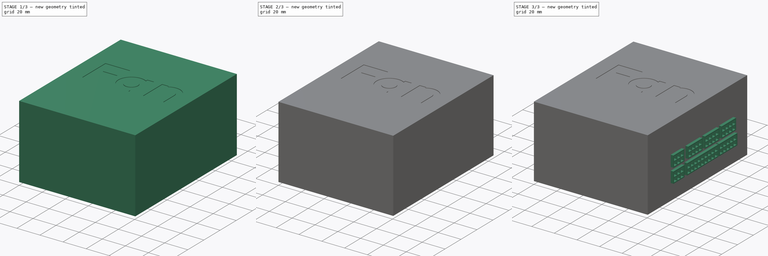
[diagram: build sequence overview — one tinted view per stage of 3, left to right]
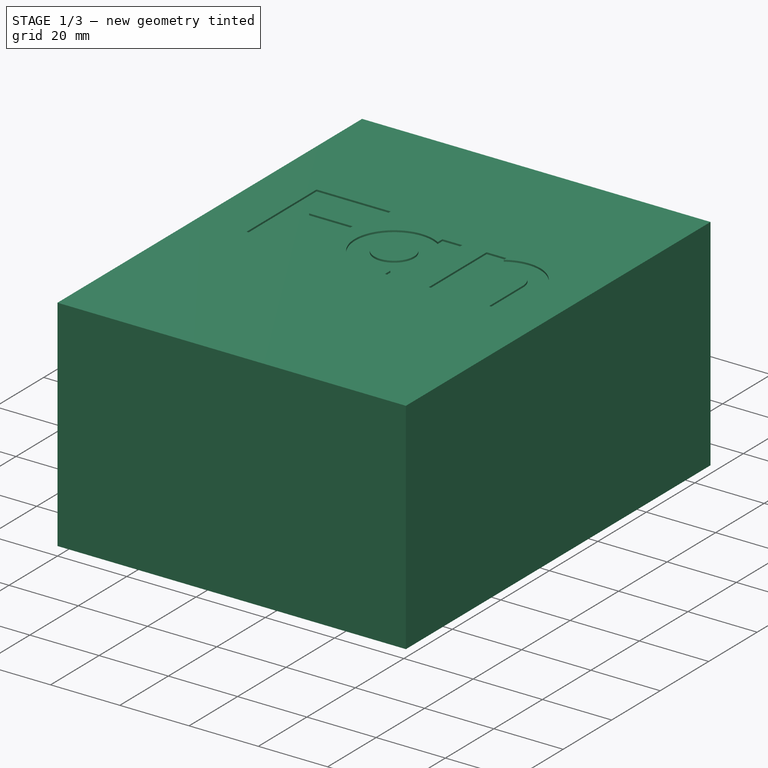
[diagram: stage 1 of 3 — iso view after this stage's code; geometry added in this stage tinted green]
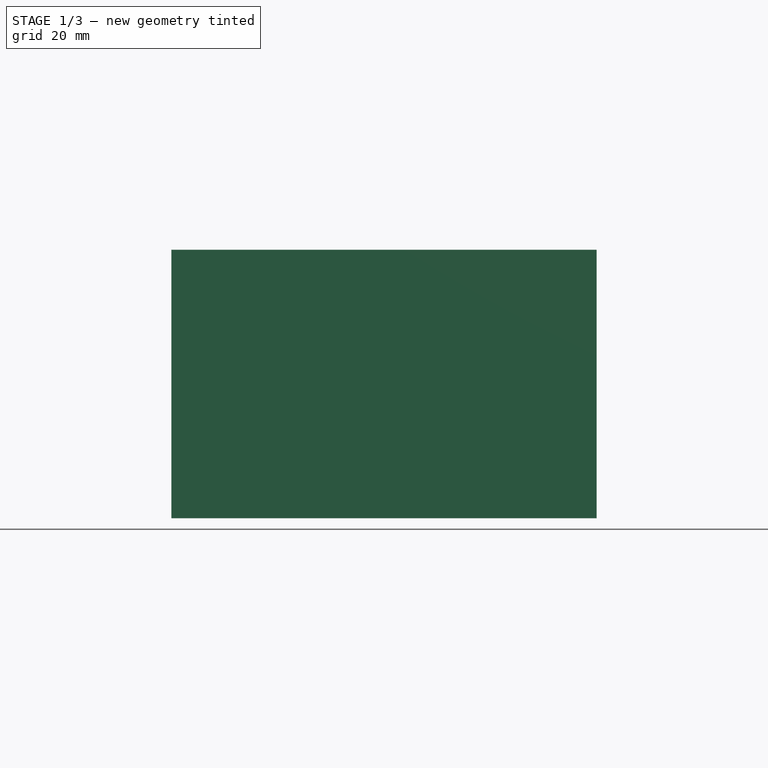
[diagram: stage 1 of 3 — front view after this stage's code; geometry added in this stage tinted green]
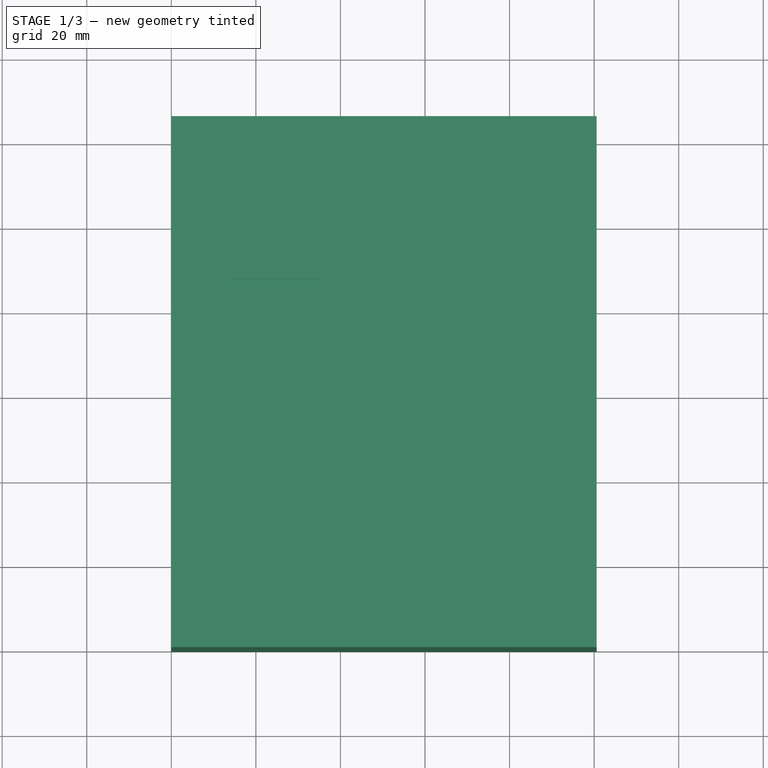
[diagram: stage 1 of 3 — top view after this stage's code; geometry added in this stage tinted green]
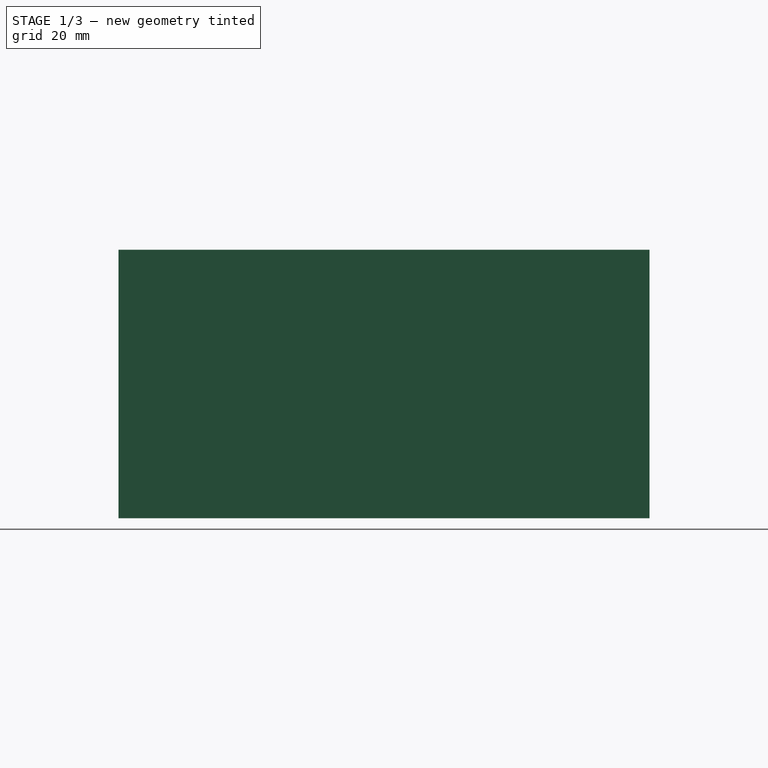
[diagram: stage 1 of 3 — right view after this stage's code; geometry added in this stage tinted green]
FCSTD DOCUMENT  (FreeCAD 0.21R33771 (Git))
Label: thermaltake-sfx-650w
License: All rights reserved
LicenseURL: http://en.wikipedia.org/wiki/All_rights_reserved
objects: Sketcher::SketchObject×6, PartDesign::Pad×3, PartDesign::Pocket×2, PartDesign::Hole×1, PartDesign::Body×1
note: 19 computed .brp shape members not serialized (recipe doc carries the construction recipe); baked Part::Feature solids carry a one-line shape summary decoded from their .brp

FEATURE [Sketcher::SketchObject] Sketch
  FullyConstrained = true
  MapMode = 5
  Support = -> [XY_Plane]
  sketch-geometry (4):
    g0: LineSegment StartX=0 StartY=0 StartZ=0 EndX=100.6 EndY=0 EndZ=0
    g1: LineSegment StartX=100.6 StartY=0 StartZ=0 EndX=100.6 EndY=125.6 EndZ=0
    g2: LineSegment StartX=100.6 StartY=125.6 StartZ=0 EndX=0 EndY=125.6 EndZ=0
    g3: LineSegment StartX=0 StartY=125.6 StartZ=0 EndX=0 EndY=0 EndZ=0
  constraints (11):
    c: Coincident(g0,g1)
    c: Coincident(g1,g2)
    c: Coincident(g2,g3)
    c: Coincident(g3,g0)
    c: Horizontal(g0)
    c: Horizontal(g2)
    c: Vertical(g1)
    c: Vertical(g3)
    c: Coincident(g0,g-1)
    c: DistanceX(g2,g2) = 100.6
    c: DistanceY(g1,g1) = 125.6
FEATURE [PartDesign::Pad] Pad
  Direction = (0,0,1)
  Length = 63.5
  Length2 = 10
  Profile = -> Sketch
  ReferenceAxis = -> Sketch [N_Axis]
  Type = 0
FEATURE [Sketcher::SketchObject] Sketch001
  FullyConstrained = false
  MapMode = 5
  Placement = pos=(0,0,63.5) rot=(0,0,1;0rad)
  Support = -> [Pad]
  sketch-geometry (30):
    g0: LineSegment StartX=13.8467 StartY=87.0433 StartZ=0 EndX=13.8467 EndY=58.18 EndZ=0
    g1: LineSegment StartX=13.8467 StartY=58.18 StartZ=0 EndX=19.964 EndY=58.18 EndZ=0
    g2: LineSegment StartX=19.964 StartY=58.18 StartZ=0 EndX=19.964 EndY=70.7491 EndZ=0
    g3: LineSegment StartX=19.964 StartY=70.7491 StartZ=0 EndX=32.624 EndY=70.7491 EndZ=0
    g4: LineSegment StartX=32.624 StartY=70.7491 StartZ=0 EndX=32.624 EndY=75.0752 EndZ=0
    g5: LineSegment StartX=32.624 StartY=75.0752 StartZ=0 EndX=20.0682 EndY=75.0752 EndZ=0
    g6: LineSegment StartX=20.0682 StartY=75.0752 StartZ=0 EndX=20.0682 EndY=81.8909 EndZ=0
    g7: LineSegment StartX=20.0682 StartY=81.8909 StartZ=0 EndX=35.2748 EndY=81.8909 EndZ=0
    g8: LineSegment StartX=35.2748 StartY=81.8909 StartZ=0 EndX=35.2748 EndY=87.0433 EndZ=0
    g9: LineSegment StartX=35.2748 StartY=87.0433 StartZ=0 EndX=13.8467 EndY=87.0433 EndZ=0
    g10: Circle CenterX=48.4536 CenterY=69.6076 CenterZ=0 NormalX=0 NormalY=0 NormalZ=1 AngleXU=0 Radius=5.7515
    g11: LineSegment StartX=54.2051 StartY=81.3207 StartZ=0 EndX=54.2051 EndY=57.6145 EndZ=0
    g12: LineSegment StartX=54.2051 StartY=81.3207 StartZ=0 EndX=59.9433 EndY=81.3207 EndZ=0
    g13: LineSegment StartX=59.9433 StartY=81.3207 StartZ=0 EndX=59.9433 EndY=57.6145 EndZ=0
    g14: LineSegment StartX=59.9433 StartY=57.6145 StartZ=0 EndX=54.2051 EndY=57.6145 EndZ=0
    g15: ArcOfCircle CenterX=48.4536 CenterY=69.6076 CenterZ=0 NormalX=0 NormalY=0 NormalZ=1 AngleXU=0 Radius=11.327 StartAngle=1.03821 EndAngle=5.24498
    g16: LineSegment StartX=54.2051 StartY=79.3658 StartZ=0 EndX=54.2051 EndY=81.3207 EndZ=0
    g17: LineSegment StartX=54.2051 StartY=59.8494 StartZ=0 EndX=54.2051 EndY=57.6145 EndZ=0
    g18: ArcOfCircle CenterX=78.6875 CenterY=70.9461 CenterZ=0 NormalX=0 NormalY=0 NormalZ=1 AngleXU=0 Radius=6.01167 StartAngle=-9e-16 EndAngle=3.14159
    g19: ArcOfCircle CenterX=78.6875 CenterY=70.9461 CenterZ=0 NormalX=0 NormalY=0 NormalZ=1 AngleXU=0 Radius=11.0434 StartAngle=0 EndAngle=2.14643
    g20: LineSegment StartX=72.6758 StartY=80.2098 StartZ=0 EndX=72.6758 EndY=70.9461 EndZ=0
    g21: LineSegment StartX=84.6992 StartY=70.9461 StartZ=0 EndX=89.7309 EndY=70.9461 EndZ=0
    g22: LineSegment StartX=84.6992 StartY=70.9461 StartZ=0 EndX=84.6992 EndY=57.0677 EndZ=0
    g23: LineSegment StartX=84.6992 StartY=57.0677 StartZ=0 EndX=89.7309 EndY=57.0677 EndZ=0
    g24: LineSegment StartX=89.7309 StartY=57.0677 StartZ=0 EndX=89.7309 EndY=70.9461 EndZ=0
    g25: LineSegment StartX=66.9433 StartY=81.3514 StartZ=0 EndX=72.6758 EndY=81.3514 EndZ=0
    g26: LineSegment StartX=72.6758 StartY=57.5172 StartZ=0 EndX=66.9433 EndY=57.5172 EndZ=0
    g27: LineSegment StartX=66.9433 StartY=57.5172 StartZ=0 EndX=66.9433 EndY=81.3514 EndZ=0
    g28: LineSegment StartX=72.6758 StartY=81.3514 StartZ=0 EndX=72.6758 EndY=80.2098 EndZ=0
    g29: LineSegment StartX=72.6758 StartY=70.9461 StartZ=0 EndX=72.6758 EndY=57.5172 EndZ=0
  constraints (62):
    c: Vertical(g0)
    c: Coincident(g0,g1)
    c: Horizontal(g1)
    c: Coincident(g1,g2)
    c: Vertical(g2)
    c: Coincident(g2,g3)
    c: Coincident(g3,g4)
    c: Coincident(g4,g5)
    c: Horizontal(g5)
    c: Coincident(g5,g6)
    c: Coincident(g6,g7)
    c: Coincident(g7,g8)
    c: Coincident(g8,g9)
    c: Horizontal(g9)
    c: Coincident(g9,g0)
    c: Horizontal(g7)
    c: Horizontal(g3)
    c: Vertical(g6)
    c: Vertical(g8)
    c: Vertical(g4)
    c: Vertical(g11)
    c: Tangent(g11,g10)
    c: Coincident(g12,g11)
    c: Coincident(g12,g13)
    c: Vertical(g13)
    c: Coincident(g13,g14)
    c: Coincident(g14,g11)
    c: Horizontal(g12)
    c: Horizontal(g14)
    c: Coincident(g15,g10)
    c: PointOnObject(g15,g11)
    c: PointOnObject(g15,g11)
    c: Coincident(g16,g15)
    c: Coincident(g17,g15)
    c: Coincident(g14,g17)
    c: Coincident(g16,g12)
    c: Coincident(g19,g18)
    c: Coincident(g20,g19)
    c: Coincident(g20,g18)
    c: Tangent(g20,g18)
    c: Coincident(g21,g18)
    c: Coincident(g21,g19)
    c: Horizontal(g21)
    c: Vertical(g20)
    c: Vertical(g22)
    c: Coincident(g22,g23)
    c: Horizontal(g23)
    c: Coincident(g23,g24)
    c: Coincident(g24,g19)
    c: Tangent(g22,g18) = 1.5708
    c: Vertical(g24)
    c: Coincident(g26,g27)
    c: Coincident(g27,g25)
    c: Horizontal(g25)
    c: Horizontal(g26)
    c: Vertical(g27)
    c: Coincident(g28,g25)
    c: Coincident(g28,g19)
    c: Vertical(g28)
    c: Coincident(g29,g18)
    c: Coincident(g29,g26)
    c: Vertical(g29)
FEATURE [PartDesign::Pocket] Pocket
  BaseFeature = -> Pad
  Direction = (0,0,-1)
  Length = 0.5
  Length2 = 5
  Profile = -> Sketch001
  ReferenceAxis = -> Sketch001 [N_Axis]
  Type = 0
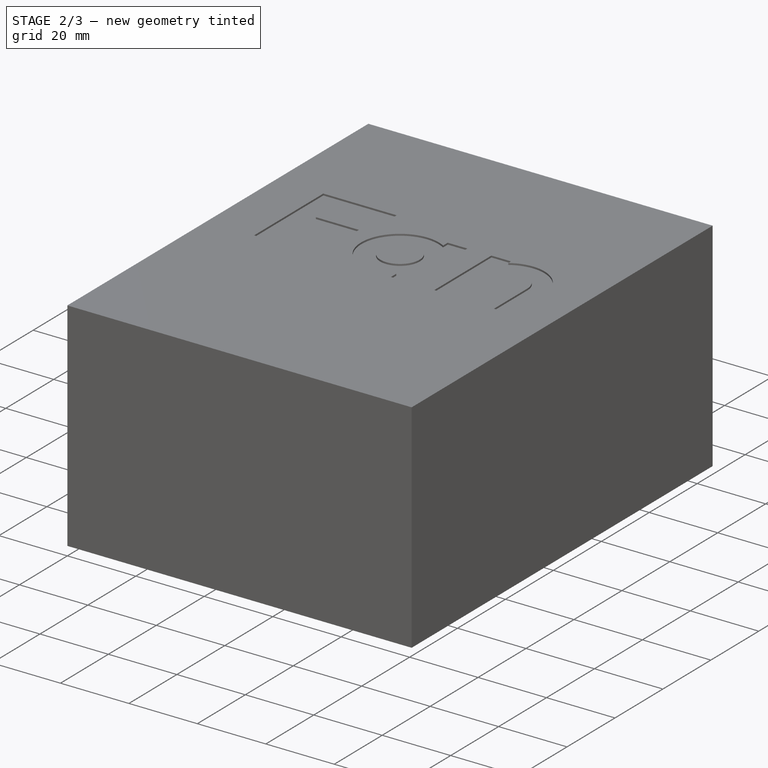
[diagram: stage 2 of 3 — iso view after this stage's code; geometry added in this stage tinted green]
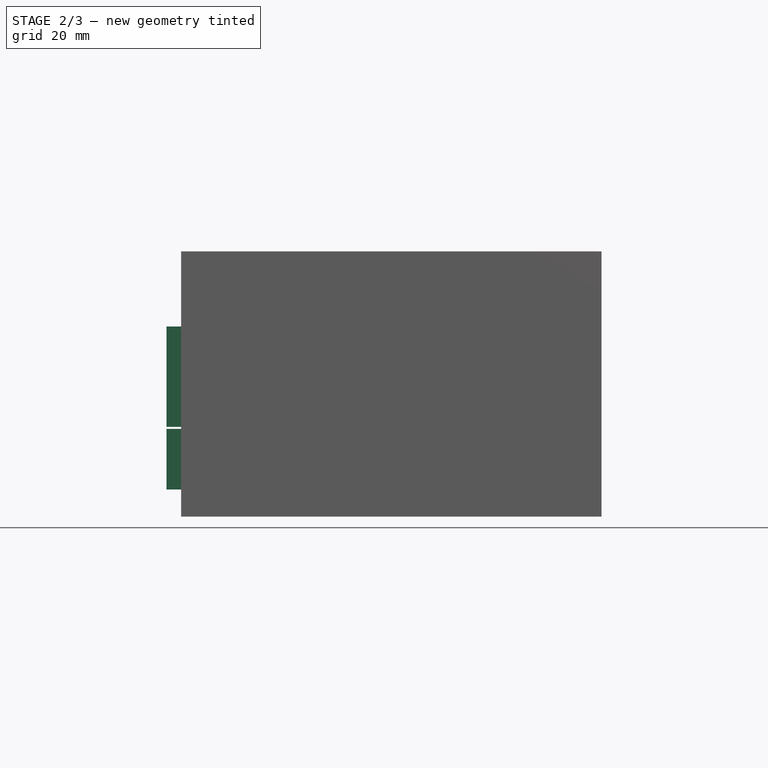
[diagram: stage 2 of 3 — front view after this stage's code; geometry added in this stage tinted green]
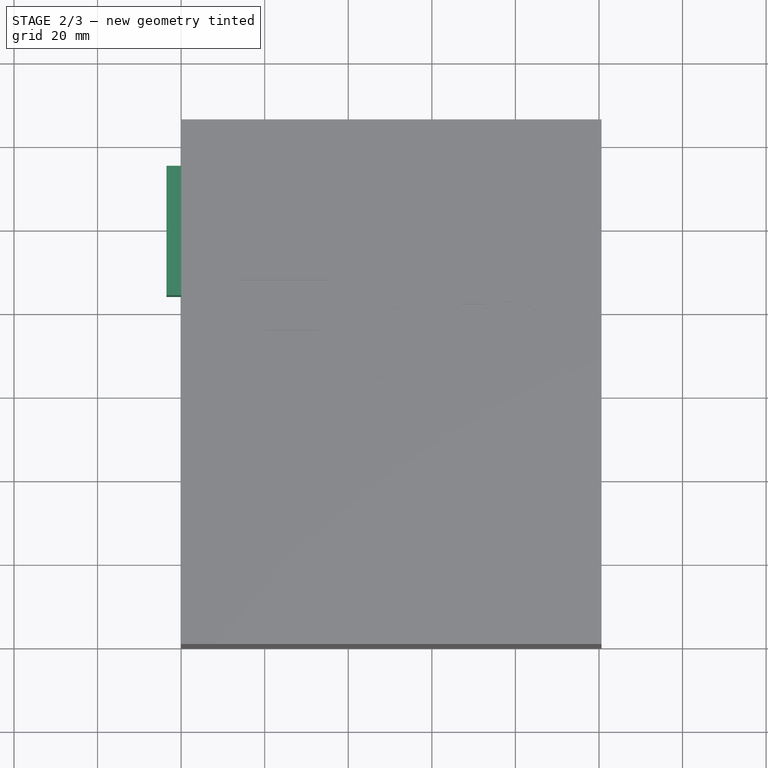
[diagram: stage 2 of 3 — top view after this stage's code; geometry added in this stage tinted green]
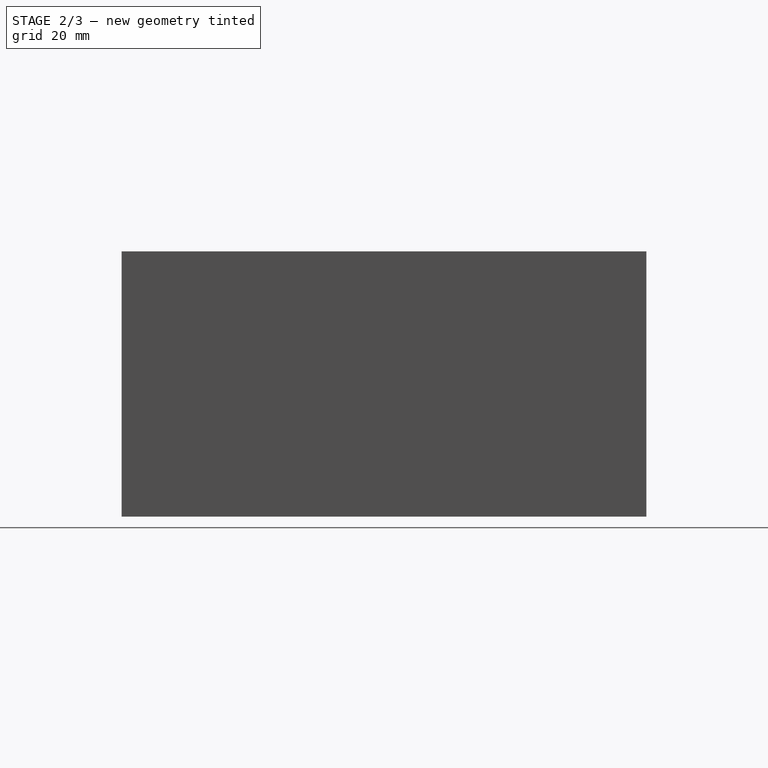
[diagram: stage 2 of 3 — right view after this stage's code; geometry added in this stage tinted green]
FEATURE [Sketcher::SketchObject] Sketch002
  ExternalGeometry = -> [Pocket]
  FullyConstrained = true
  MapMode = 5
  Placement = pos=(0,0,0) rot=(0.57735,-0.57735,-0.57735;2.0944rad)
  Support = -> [Pocket]
  sketch-geometry (8):
    g0: LineSegment StartX=-114.8 StartY=45.5 StartZ=0 EndX=-83.8 EndY=45.5 EndZ=0
    g1: LineSegment StartX=-83.8 StartY=45.5 StartZ=0 EndX=-83.8 EndY=21.5 EndZ=0
    g2: LineSegment StartX=-83.8 StartY=21.5 StartZ=0 EndX=-114.8 EndY=21.5 EndZ=0
    g3: LineSegment StartX=-114.8 StartY=21.5 StartZ=0 EndX=-114.8 EndY=45.5 EndZ=0
    g4: LineSegment StartX=-113.3 StartY=21 StartZ=0 EndX=-92.3 EndY=21 EndZ=0
    g5: LineSegment StartX=-92.3 StartY=21 StartZ=0 EndX=-92.3 EndY=6.5 EndZ=0
    g6: LineSegment StartX=-92.3 StartY=6.5 StartZ=0 EndX=-113.3 EndY=6.5 EndZ=0
    g7: LineSegment StartX=-113.3 StartY=6.5 StartZ=0 EndX=-113.3 EndY=21 EndZ=0
  constraints (24):
    c: Coincident(g0,g1)
    c: Coincident(g1,g2)
    c: Coincident(g2,g3)
    c: Coincident(g3,g0)
    c: Horizontal(g0)
    c: Horizontal(g2)
    c: Vertical(g1)
    c: Vertical(g3)
    c: DistanceX(g0,g0) = 31
    c: DistanceY(g1,g1) = 24
    c: DistanceX(g-4,g0) = 10.8
    c: DistanceY(g0,g-4) = 18
    c: Coincident(g4,g5)
    c: Coincident(g5,g6)
    c: Coincident(g6,g7)
    c: Coincident(g7,g4)
    c: Horizontal(g4)
    c: Horizontal(g6)
    c: Vertical(g5)
    c: Vertical(g7)
    c: DistanceY(g4,g2) = 0.5
    c: DistanceY(g6,g2) = 15
    c: DistanceX(g2,g6) = 1.5
    c: DistanceX(g6,g6) = 21
FEATURE [PartDesign::Pad] Pad001
  BaseFeature = -> Pocket
  Direction = (-1,0,0)
  Length = 3.5
  Length2 = 10
  Profile = -> Sketch002
  ReferenceAxis = -> Sketch002 [N_Axis]
  Type = 0
FEATURE [Sketcher::SketchObject] Sketch003
  ExternalGeometry = -> [Pad001]
  FullyConstrained = false
  MapMode = 5
  Placement = pos=(0,0,0) rot=(0.57735,-0.57735,-0.57735;2.0944rad)
  Support = -> [Pad001]
  sketch-geometry (16):
    g0: LineSegment StartX=-120.3 StartY=57.5 StartZ=0 EndX=-5.3 EndY=57.5 EndZ=0
    g1: LineSegment StartX=-5.3 StartY=57.5 StartZ=0 EndX=-5.3 EndY=31.75 EndZ=0
    g2: LineSegment StartX=-5.3 StartY=31.75 StartZ=0 EndX=-120.3 EndY=31.75 EndZ=0
    g3: LineSegment StartX=-120.3 StartY=31.75 StartZ=0 EndX=-120.3 EndY=57.5 EndZ=0
    g4: LineSegment StartX=-120.3 StartY=31.75 StartZ=0 EndX=-120.3 EndY=6 EndZ=0
    g5: LineSegment StartX=-120.3 StartY=6 StartZ=0 EndX=-5.3 EndY=6 EndZ=0
    g6: LineSegment StartX=-5.3 StartY=6 StartZ=0 EndX=-5.3 EndY=31.75 EndZ=0
    g7: Circle CenterX=-120.3 CenterY=57.5 CenterZ=0 NormalX=0 NormalY=0 NormalZ=1 AngleXU=0 Radius=3.34431
    g8: Circle CenterX=-120.3 CenterY=31.75 CenterZ=0 NormalX=0 NormalY=0 NormalZ=1 AngleXU=0 Radius=3.34431
    g9: Circle CenterX=-120.3 CenterY=6 CenterZ=0 NormalX=0 NormalY=0 NormalZ=1 AngleXU=0 Radius=3.34431
    g10: Circle CenterX=-5.3 CenterY=6 CenterZ=0 NormalX=0 NormalY=0 NormalZ=1 AngleXU=0 Radius=3.34431
    g11: Circle CenterX=-5.3 CenterY=31.75 CenterZ=0 NormalX=0 NormalY=0 NormalZ=1 AngleXU=0 Radius=3.34431
    g12: Circle CenterX=-5.3 CenterY=57.5 CenterZ=0 NormalX=0 NormalY=0 NormalZ=1 AngleXU=0 Radius=3.34431
    g13: LineSegment StartX=-125.6 StartY=63.5 StartZ=0 EndX=-120.3 EndY=57.5 EndZ=0
    g14: LineSegment StartX=0 StartY=63.5 StartZ=0 EndX=-5.3 EndY=57.5 EndZ=0
    g15: LineSegment StartX=-120.3 StartY=6 StartZ=0 EndX=-125.6 EndY=0 EndZ=0
  constraints (39):
    c: Coincident(g0,g1)
    c: Coincident(g1,g2)
    c: Coincident(g2,g3)
    c: Coincident(g3,g0)
    c: Horizontal(g0)
    c: Horizontal(g2)
    c: Vertical(g1)
    c: Vertical(g3)
    c: Coincident(g5,g6)
    c: Coincident(g4,g5)
    c: Horizontal(g5)
    c: Vertical(g6)
    c: Vertical(g4)
    c: Equal(g1,g6)
    c: Coincident(g7,g0)
    c: Coincident(g8,g2)
    c: Coincident(g9,g4)
    c: Coincident(g10,g5)
    c: Coincident(g11,g1)
    c: Coincident(g12,g0)
    c: Coincident(g13,g-5)
    c: Coincident(g13,g7)
    c: Coincident(g14,g-4)
    c: Coincident(g14,g12)
    c: Coincident(g15,g9)
    c: Coincident(g15,g-5)
    c: Equal(g15,g13)
    c: Equal(g13,g14)
    c: Coincident(g4,g8)
    c: Coincident(g6,g11)
    c: Equal(g9,g8)
    c: Equal(g8,g7)
    c: Equal(g7,g12)
    c: Equal(g12,g11)
    c: Equal(g11,g10)
    c: DistanceX(g0,g0) = 115
    c: DistanceY(g10,g12) = 51.5
    c: DistanceY(g7,g13) = 6
    c: DistanceX(g12,g14) = 5.3
FEATURE [PartDesign::Hole] Hole
  BaseFeature = -> Pad001
  CustomThreadClearance = 0
  Depth = 10
  DepthType = 0
  Diameter = 2.52
  DrillForDepth = false
  DrillPoint = 0
  DrillPointAngle = 118
  HoleCutCountersinkAngle = 90
  HoleCutCustomValues = false
  HoleCutDepth = 0
  HoleCutDiameter = 6.1
  HoleCutType = 0
  ModelThread = true
  Profile = -> Sketch003
  Tapered = false
  TaperedAngle = 90
  ThreadClass = 0
  ThreadDepth = 10
  ThreadDepthType = 0
  ThreadDirection = 0
  ThreadFit = 0
  ThreadSize = 9
  ThreadType = 1
  Threaded = true
  UseCustomThreadClearance = false
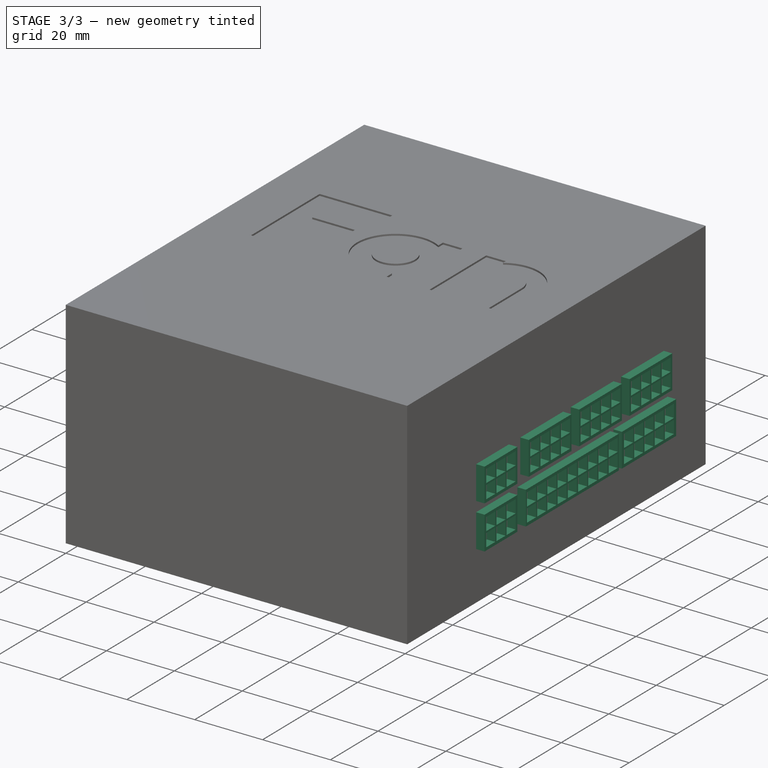
[diagram: stage 3 of 3 — iso view after this stage's code; geometry added in this stage tinted green]
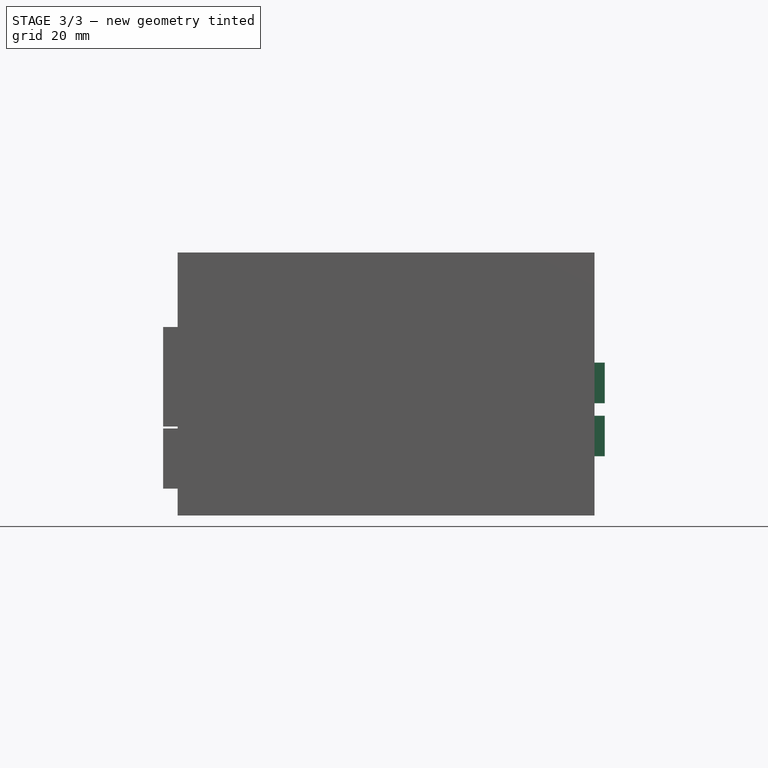
[diagram: stage 3 of 3 — front view after this stage's code; geometry added in this stage tinted green]
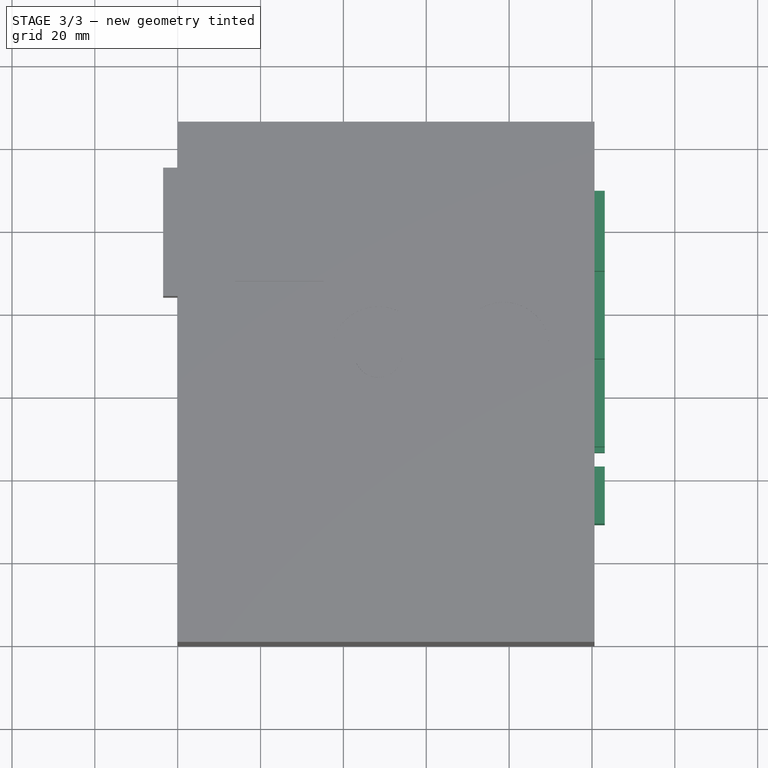
[diagram: stage 3 of 3 — top view after this stage's code; geometry added in this stage tinted green]
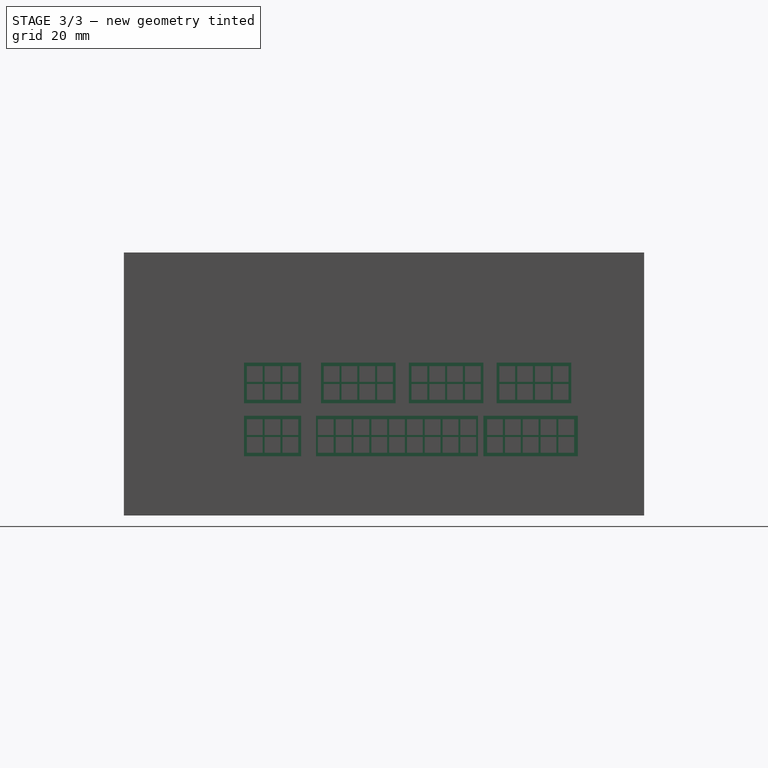
[diagram: stage 3 of 3 — right view after this stage's code; geometry added in this stage tinted green]
FEATURE [Sketcher::SketchObject] Sketch004
  FullyConstrained = false
  MapMode = 5
  Placement = pos=(0,0,0) rot=(0.57735,-0.57735,-0.57735;2.0944rad)
  Support = -> [Hole]
  sketch-geometry (21):
    g0: LineSegment StartX=-43.3891 StartY=33.4609 StartZ=0 EndX=-40.5171 EndY=44.1793 EndZ=0
    g1: LineSegment StartX=-40.5171 StartY=44.1793 StartZ=0 EndX=-48.3635 EndY=52.0257 EndZ=0
    g2: LineSegment StartX=-48.3635 StartY=52.0257 StartZ=0 EndX=-59.082 EndY=49.1537 EndZ=0
    g3: LineSegment StartX=-59.082 StartY=49.1537 StartZ=0 EndX=-61.954 EndY=38.4353 EndZ=0
    g4: LineSegment StartX=-61.954 StartY=38.4353 StartZ=0 EndX=-54.1075 EndY=30.5889 EndZ=0
    g5: LineSegment StartX=-54.1075 StartY=30.5889 StartZ=0 EndX=-43.3891 EndY=33.4609 EndZ=0
    g6: Circle CenterX=-51.2355 CenterY=41.3073 CenterZ=0 NormalX=0 NormalY=0 NormalZ=1 AngleXU=0 Radius=11.0965
    g7: LineSegment StartX=-30.3674 StartY=13.9283 StartZ=0 EndX=-26.9782 EndY=24.7526 EndZ=0
    g8: LineSegment StartX=-26.9782 StartY=24.7526 StartZ=0 EndX=-34.6577 EndY=33.0998 EndZ=0
    g9: LineSegment StartX=-34.6577 StartY=33.0998 StartZ=0 EndX=-45.7263 EndY=30.6228 EndZ=0
    g10: LineSegment StartX=-45.7263 StartY=30.6228 StartZ=0 EndX=-49.1155 EndY=19.7986 EndZ=0
    g11: LineSegment StartX=-49.1155 StartY=19.7986 StartZ=0 EndX=-41.4361 EndY=11.4513 EndZ=0
    g12: LineSegment StartX=-41.4361 StartY=11.4513 StartZ=0 EndX=-30.3674 EndY=13.9283 EndZ=0
    g13: Circle CenterX=-38.0469 CenterY=22.2756 CenterZ=0 NormalX=0 NormalY=0 NormalZ=1 AngleXU=0 Radius=11.3425
    g14: LineSegment StartX=-54.0736 StartY=12.4258 StartZ=0 EndX=-50.5786 EndY=22.7328 EndZ=0
    g15: LineSegment StartX=-50.5786 StartY=22.7328 StartZ=0 EndX=-57.7572 EndY=30.9131 EndZ=0
    g16: LineSegment StartX=-57.7572 StartY=30.9131 StartZ=0 EndX=-68.4309 EndY=28.7864 EndZ=0
    g17: LineSegment StartX=-68.4309 StartY=28.7864 StartZ=0 EndX=-71.9259 EndY=18.4794 EndZ=0
    g18: LineSegment StartX=-71.9259 StartY=18.4794 StartZ=0 EndX=-64.7473 EndY=10.2991 EndZ=0
    g19: LineSegment StartX=-64.7473 StartY=10.2991 StartZ=0 EndX=-54.0736 EndY=12.4258 EndZ=0
    g20: Circle CenterX=-61.2522 CenterY=20.6061 CenterZ=0 NormalX=0 NormalY=0 NormalZ=1 AngleXU=0 Radius=10.8835
  constraints (39):
    c: Coincident(g0,g1)
    c: Coincident(g1,g2)
    c: Coincident(g2,g3)
    c: Coincident(g3,g4)
    c: Coincident(g4,g5)
    c: Coincident(g5,g0)
    c: Equal(g0, g1-g5) x5
    c: PointOnObject(g0,g6)
    c: PointOnObject(g1,g6)
    c: PointOnObject(g2,g6)
    c: PointOnObject(g3,g6)
    c: PointOnObject(g4,g6)
    c: PointOnObject(g5,g6)
    c: Coincident(g7,g8)
    c: Coincident(g8,g9)
    c: Coincident(g9,g10)
    c: Coincident(g10,g11)
    c: Coincident(g11,g12)
    c: Coincident(g12,g7)
    c: Equal(g7, g8-g12) x5
    c: PointOnObject(g7,g13)
    c: PointOnObject(g8,g13)
    c: PointOnObject(g9,g13)
    c: PointOnObject(g10,g13)
    c: PointOnObject(g11,g13)
    c: PointOnObject(g12,g13)
    c: Coincident(g14,g15)
    c: Coincident(g15,g16)
    c: Coincident(g16,g17)
    c: Coincident(g17,g18)
    c: Coincident(g18,g19)
    c: Coincident(g19,g14)
    c: Equal(g14, g15-g19) x5
    c: PointOnObject(g14,g20)
    c: PointOnObject(g15,g20)
    c: PointOnObject(g16,g20)
    c: PointOnObject(g17,g20)
    c: PointOnObject(g18,g20)
    c: PointOnObject(g19,g20)
FEATURE [PartDesign::Pocket] Pocket001
  BaseFeature = -> Hole
  Direction = (1,0,0)
  Length = 0.5
  Length2 = 5
  Profile = -> Sketch004
  ReferenceAxis = -> Sketch004 [N_Axis]
  Type = 0
FEATURE [Sketcher::SketchObject] Sketch005
  ExternalGeometry = -> [Pocket001]
  FullyConstrained = true
  MapMode = 5
  Placement = pos=(100.6,0,0) rot=(0.57735,0.57735,0.57735;2.0944rad)
  Support = -> [Pocket001]
  sketch-geometry (339):
    g0: LineSegment StartX=90 StartY=36.9 StartZ=0 EndX=108 EndY=36.9 EndZ=0
    g1: LineSegment StartX=108 StartY=36.9 StartZ=0 EndX=108 EndY=27.1 EndZ=0
    g2: LineSegment StartX=108 StartY=27.1 StartZ=0 EndX=90 EndY=27.1 EndZ=0
    g3: LineSegment StartX=90 StartY=27.1 StartZ=0 EndX=90 EndY=36.9 EndZ=0
    g4: LineSegment StartX=68.8 StartY=36.9 StartZ=0 EndX=86.8 EndY=36.9 EndZ=0
    g5: LineSegment StartX=86.8 StartY=36.9 StartZ=0 EndX=86.8 EndY=27.1 EndZ=0
    g6: LineSegment StartX=86.8 StartY=27.1 StartZ=0 EndX=68.8 EndY=27.1 EndZ=0
    g7: LineSegment StartX=68.8 StartY=27.1 StartZ=0 EndX=68.8 EndY=36.9 EndZ=0
    g8: LineSegment StartX=47.6 StartY=36.9 StartZ=0 EndX=65.6 EndY=36.9 EndZ=0
    g9: LineSegment StartX=65.6 StartY=36.9 StartZ=0 EndX=65.6 EndY=27.1 EndZ=0
    g10: LineSegment StartX=65.6 StartY=27.1 StartZ=0 EndX=47.6 EndY=27.1 EndZ=0
    g11: LineSegment StartX=47.6 StartY=27.1 StartZ=0 EndX=47.6 EndY=36.9 EndZ=0
    g12: LineSegment StartX=90.65 StartY=36.05 StartZ=0 EndX=94.45 EndY=36.05 EndZ=0
    g13: LineSegment StartX=94.45 StartY=36.05 StartZ=0 EndX=94.45 EndY=32.25 EndZ=0
    g14: LineSegment StartX=94.45 StartY=32.25 StartZ=0 EndX=90.65 EndY=32.25 EndZ=0
    g15: LineSegment StartX=90.65 StartY=32.25 StartZ=0 EndX=90.65 EndY=36.05 EndZ=0
    g16: LineSegment StartX=94.95 StartY=36.05 StartZ=0 EndX=98.75 EndY=36.05 EndZ=0
    g17: LineSegment StartX=98.75 StartY=36.05 StartZ=0 EndX=98.75 EndY=32.25 EndZ=0
    g18: LineSegment StartX=98.75 StartY=32.25 StartZ=0 EndX=94.95 EndY=32.25 EndZ=0
    g19: LineSegment StartX=94.95 StartY=32.25 StartZ=0 EndX=94.95 EndY=36.05 EndZ=0
    g20: LineSegment StartX=99.25 StartY=36.05 StartZ=0 EndX=103.05 EndY=36.05 EndZ=0
    g21: LineSegment StartX=103.05 StartY=36.05 StartZ=0 EndX=103.05 EndY=32.25 EndZ=0
    g22: LineSegment StartX=103.05 StartY=32.25 StartZ=0 EndX=99.25 EndY=32.25 EndZ=0
    g23: LineSegment StartX=99.25 StartY=32.25 StartZ=0 EndX=99.25 EndY=36.05 EndZ=0
    g24: LineSegment StartX=103.55 StartY=36.05 StartZ=0 EndX=107.35 EndY=36.05 EndZ=0
    g25: LineSegment StartX=107.35 StartY=36.05 StartZ=0 EndX=107.35 EndY=32.25 EndZ=0
    g26: LineSegment StartX=107.35 StartY=32.25 StartZ=0 EndX=103.55 EndY=32.25 EndZ=0
    g27: LineSegment StartX=103.55 StartY=32.25 StartZ=0 EndX=103.55 EndY=36.05 EndZ=0
    g28: LineSegment StartX=103.55 StartY=31.75 StartZ=0 EndX=107.35 EndY=31.75 EndZ=0
    g29: LineSegment StartX=107.35 StartY=31.75 StartZ=0 EndX=107.35 EndY=27.95 EndZ=0
    g30: LineSegment StartX=107.35 StartY=27.95 StartZ=0 EndX=103.55 EndY=27.95 EndZ=0
    g31: LineSegment StartX=103.55 StartY=27.95 StartZ=0 EndX=103.55 EndY=31.75 EndZ=0
    g32: LineSegment StartX=99.25 StartY=31.75 StartZ=0 EndX=103.05 EndY=31.75 EndZ=0
    g33: LineSegment StartX=103.05 StartY=31.75 StartZ=0 EndX=103.05 EndY=27.95 EndZ=0
    g34: LineSegment StartX=103.05 StartY=27.95 StartZ=0 EndX=99.25 EndY=27.95 EndZ=0
    g35: LineSegment StartX=99.25 StartY=27.95 StartZ=0 EndX=99.25 EndY=31.75 EndZ=0
    g36: LineSegment StartX=94.95 StartY=31.75 StartZ=0 EndX=98.75 EndY=31.75 EndZ=0
    g37: LineSegment StartX=98.75 StartY=31.75 StartZ=0 EndX=98.75 EndY=27.95 EndZ=0
    g38: LineSegment StartX=98.75 StartY=27.95 StartZ=0 EndX=94.95 EndY=27.95 EndZ=0
    g39: LineSegment StartX=94.95 StartY=27.95 StartZ=0 EndX=94.95 EndY=31.75 EndZ=0
    g40: LineSegment StartX=90.65 StartY=31.75 StartZ=0 EndX=94.45 EndY=31.75 EndZ=0
    g41: LineSegment StartX=94.45 StartY=31.75 StartZ=0 EndX=94.45 EndY=27.95 EndZ=0
    g42: LineSegment StartX=94.45 StartY=27.95 StartZ=0 EndX=90.65 EndY=27.95 EndZ=0
    g43: LineSegment StartX=90.65 StartY=27.95 StartZ=0 EndX=90.65 EndY=31.75 EndZ=0
    g44: LineSegment StartX=94.45 StartY=32.25 StartZ=0 EndX=94.95 EndY=32.25 EndZ=0
    g45: LineSegment StartX=98.75 StartY=32.25 StartZ=0 EndX=99.25 EndY=32.25 EndZ=0
    g46: LineSegment StartX=103.05 StartY=32.25 StartZ=0 EndX=103.55 EndY=32.25 EndZ=0
    g47: LineSegment StartX=65.6 StartY=36.9 StartZ=0 EndX=68.8 EndY=36.9 EndZ=0
    g48: LineSegment StartX=86.8 StartY=36.9 StartZ=0 EndX=90 EndY=36.9 EndZ=0
    g49: LineSegment StartX=90 StartY=36.9 StartZ=0 EndX=90.65 EndY=36.05 EndZ=0
    g50: LineSegment StartX=107.35 StartY=36.05 StartZ=0 EndX=108 EndY=36.9 EndZ=0
    g51: LineSegment StartX=90.65 StartY=27.95 StartZ=0 EndX=90 EndY=27.1 EndZ=0
    g52: LineSegment StartX=73.25 StartY=36.05 StartZ=0 EndX=69.45 EndY=36.05 EndZ=0
    g53: LineSegment StartX=69.45 StartY=36.05 StartZ=0 EndX=69.45 EndY=32.25 EndZ=0
    g54: LineSegment StartX=69.45 StartY=32.25 StartZ=0 EndX=73.25 EndY=32.25 EndZ=0
    g55: LineSegment StartX=73.25 StartY=32.25 StartZ=0 EndX=73.25 EndY=36.05 EndZ=0
    g56: LineSegment StartX=77.55 StartY=36.05 StartZ=0 EndX=73.75 EndY=36.05 EndZ=0
    g57: LineSegment StartX=73.75 StartY=36.05 StartZ=0 EndX=73.75 EndY=32.25 EndZ=0
    g58: LineSegment StartX=73.75 StartY=32.25 StartZ=0 EndX=77.55 EndY=32.25 EndZ=0
    g59: LineSegment StartX=77.55 StartY=32.25 StartZ=0 EndX=77.55 EndY=36.05 EndZ=0
    g60: LineSegment StartX=81.85 StartY=36.05 StartZ=0 EndX=78.05 EndY=36.05 EndZ=0
    g61: LineSegment StartX=78.05 StartY=36.05 StartZ=0 EndX=78.05 EndY=32.25 EndZ=0
    g62: LineSegment StartX=78.05 StartY=32.25 StartZ=0 EndX=81.85 EndY=32.25 EndZ=0
    g63: LineSegment StartX=81.85 StartY=32.25 StartZ=0 EndX=81.85 EndY=36.05 EndZ=0
    g64: LineSegment StartX=86.15 StartY=36.05 StartZ=0 EndX=82.35 EndY=36.05 EndZ=0
    g65: LineSegment StartX=82.35 StartY=36.05 StartZ=0 EndX=82.35 EndY=32.25 EndZ=0
    g66: LineSegment StartX=82.35 StartY=32.25 StartZ=0 EndX=86.15 EndY=32.25 EndZ=0
    g67: LineSegment StartX=86.15 StartY=32.25 StartZ=0 EndX=86.15 EndY=36.05 EndZ=0
    g68: LineSegment StartX=86.15 StartY=31.75 StartZ=0 EndX=82.35 EndY=31.75 EndZ=0
    g69: LineSegment StartX=82.35 StartY=31.75 StartZ=0 EndX=82.35 EndY=27.95 EndZ=0
    g70: LineSegment StartX=82.35 StartY=27.95 StartZ=0 EndX=86.15 EndY=27.95 EndZ=0
    g71: LineSegment StartX=86.15 StartY=27.95 StartZ=0 EndX=86.15 EndY=31.75 EndZ=0
    g72: LineSegment StartX=81.85 StartY=31.75 StartZ=0 EndX=78.05 EndY=31.75 EndZ=0
    g73: LineSegment StartX=78.05 StartY=31.75 StartZ=0 EndX=78.05 EndY=27.95 EndZ=0
    g74: LineSegment StartX=78.05 StartY=27.95 StartZ=0 EndX=81.85 EndY=27.95 EndZ=0
    g75: LineSegment StartX=81.85 StartY=27.95 StartZ=0 EndX=81.85 EndY=31.75 EndZ=0
    g76: LineSegment StartX=77.55 StartY=31.75 StartZ=0 EndX=73.75 EndY=31.75 EndZ=0
    g77: LineSegment StartX=73.75 StartY=31.75 StartZ=0 EndX=73.75 EndY=27.95 EndZ=0
    g78: LineSegment StartX=73.75 StartY=27.95 StartZ=0 EndX=77.55 EndY=27.95 EndZ=0
    g79: LineSegment StartX=77.55 StartY=27.95 StartZ=0 EndX=77.55 EndY=31.75 EndZ=0
    g80: LineSegment StartX=73.25 StartY=31.75 StartZ=0 EndX=69.45 EndY=31.75 EndZ=0
    g81: LineSegment StartX=69.45 StartY=31.75 StartZ=0 EndX=69.45 EndY=27.95 EndZ=0
    g82: LineSegment StartX=69.45 StartY=27.95 StartZ=0 EndX=73.25 EndY=27.95 EndZ=0
    g83: LineSegment StartX=73.25 StartY=27.95 StartZ=0 EndX=73.25 EndY=31.75 EndZ=0
    g84: LineSegment StartX=48.25 StartY=36.05 StartZ=0 EndX=52.05 EndY=36.05 EndZ=0
    g85: LineSegment StartX=52.05 StartY=36.05 StartZ=0 EndX=52.05 EndY=32.25 EndZ=0
    g86: LineSegment StartX=52.05 StartY=32.25 StartZ=0 EndX=48.25 EndY=32.25 EndZ=0
    g87: LineSegment StartX=48.25 StartY=32.25 StartZ=0 EndX=48.25 EndY=36.05 EndZ=0
    g88: LineSegment StartX=52.55 StartY=36.05 StartZ=0 EndX=56.35 EndY=36.05 EndZ=0
    g89: LineSegment StartX=56.35 StartY=36.05 StartZ=0 EndX=56.35 EndY=32.25 EndZ=0
    g90: LineSegment StartX=56.35 StartY=32.25 StartZ=0 EndX=52.55 EndY=32.25 EndZ=0
    g91: LineSegment StartX=52.55 StartY=32.25 StartZ=0 EndX=52.55 EndY=36.05 EndZ=0
    g92: LineSegment StartX=56.85 StartY=36.05 StartZ=0 EndX=60.65 EndY=36.05 EndZ=0
    g93: LineSegment StartX=60.65 StartY=36.05 StartZ=0 EndX=60.65 EndY=32.25 EndZ=0
    g94: LineSegment StartX=60.65 StartY=32.25 StartZ=0 EndX=56.85 EndY=32.25 EndZ=0
    g95: LineSegment StartX=56.85 StartY=32.25 StartZ=0 EndX=56.85 EndY=36.05 EndZ=0
    g96: LineSegment StartX=61.15 StartY=36.05 StartZ=0 EndX=64.95 EndY=36.05 EndZ=0
    g97: LineSegment StartX=64.95 StartY=36.05 StartZ=0 EndX=64.95 EndY=32.25 EndZ=0
    g98: LineSegment StartX=64.95 StartY=32.25 StartZ=0 EndX=61.15 EndY=32.25 EndZ=0
    g99: LineSegment StartX=61.15 StartY=32.25 StartZ=0 EndX=61.15 EndY=36.05 EndZ=0
    g100: LineSegment StartX=61.15 StartY=31.75 StartZ=0 EndX=64.95 EndY=31.75 EndZ=0
    g101: LineSegment StartX=64.95 StartY=31.75 StartZ=0 EndX=64.95 EndY=27.95 EndZ=0
    g102: LineSegment StartX=64.95 StartY=27.95 StartZ=0 EndX=61.15 EndY=27.95 EndZ=0
    g103: LineSegment StartX=61.15 StartY=27.95 StartZ=0 EndX=61.15 EndY=31.75 EndZ=0
    g104: LineSegment StartX=56.85 StartY=31.75 StartZ=0 EndX=60.65 EndY=31.75 EndZ=0
    g105: LineSegment StartX=60.65 StartY=31.75 StartZ=0 EndX=60.65 EndY=27.95 EndZ=0
    g106: LineSegment StartX=60.65 StartY=27.95 StartZ=0 EndX=56.85 EndY=27.95 EndZ=0
    g107: LineSegment StartX=56.85 StartY=27.95 StartZ=0 EndX=56.85 EndY=31.75 EndZ=0
    g108: LineSegment StartX=52.55 StartY=31.75 StartZ=0 EndX=56.35 EndY=31.75 EndZ=0
    g109: LineSegment StartX=56.35 StartY=31.75 StartZ=0 EndX=56.35 EndY=27.95 EndZ=0
    g110: LineSegment StartX=56.35 StartY=27.95 StartZ=0 EndX=52.55 EndY=27.95 EndZ=0
    g111: LineSegment StartX=52.55 StartY=27.95 StartZ=0 EndX=52.55 EndY=31.75 EndZ=0
    g112: LineSegment StartX=48.25 StartY=31.75 StartZ=0 EndX=52.05 EndY=31.75 EndZ=0
    g113: LineSegment StartX=52.05 StartY=31.75 StartZ=0 EndX=52.05 EndY=27.95 EndZ=0
    g114: LineSegment StartX=52.05 StartY=27.95 StartZ=0 EndX=48.25 EndY=27.95 EndZ=0
    g115: LineSegment StartX=48.25 StartY=27.95 StartZ=0 EndX=48.25 EndY=31.75 EndZ=0
    g116: LineSegment StartX=52.05 StartY=32.25 StartZ=0 EndX=52.55 EndY=32.25 EndZ=0
    g117: LineSegment StartX=56.35 StartY=32.25 StartZ=0 EndX=56.85 EndY=32.25 EndZ=0
    g118: LineSegment StartX=60.65 StartY=32.25 StartZ=0 EndX=61.15 EndY=32.25 EndZ=0
    g119: LineSegment StartX=47.6 StartY=36.9 StartZ=0 EndX=48.25 EndY=36.05 EndZ=0
    g120: LineSegment StartX=48.25 StartY=27.95 StartZ=0 EndX=47.6 EndY=27.1 EndZ=0
    g121: LineSegment StartX=64.95 StartY=36.05 StartZ=0 EndX=65.6 EndY=36.9 EndZ=0
    g122: LineSegment StartX=68.8 StartY=36.9 StartZ=0 EndX=73.25 EndY=36.05 EndZ=0
    g123: LineSegment StartX=73.25 StartY=27.95 StartZ=0 EndX=68.8 EndY=27.1 EndZ=0
    g124: LineSegment StartX=82.35 StartY=36.05 StartZ=0 EndX=86.8 EndY=36.9 EndZ=0
    g125: LineSegment StartX=73.25 StartY=32.25 StartZ=0 EndX=73.75 EndY=32.25 EndZ=0
    g126: LineSegment StartX=77.55 StartY=32.25 StartZ=0 EndX=78.05 EndY=32.25 EndZ=0
    g127: LineSegment StartX=81.85 StartY=32.25 StartZ=0 EndX=82.35 EndY=32.25 EndZ=0
    g128: LineSegment StartX=90.65 StartY=32.25 StartZ=0 EndX=90.65 EndY=31.75 EndZ=0
    g129: LineSegment StartX=86.15 StartY=32.25 StartZ=0 EndX=86.15 EndY=31.75 EndZ=0
    g130: LineSegment StartX=64.95 StartY=32.25 StartZ=0 EndX=64.95 EndY=31.75 EndZ=0
    g131: LineSegment StartX=29 StartY=36.9 StartZ=0 EndX=42.8 EndY=36.9 EndZ=0
    g132: LineSegment StartX=42.8 StartY=36.9 StartZ=0 EndX=42.8 EndY=27.1 EndZ=0
    g133: LineSegment StartX=42.8 StartY=27.1 StartZ=0 EndX=29 EndY=27.1 EndZ=0
    g134: LineSegment StartX=29 StartY=27.1 StartZ=0 EndX=29 EndY=36.9 EndZ=0
    g135: LineSegment StartX=29 StartY=24.1 StartZ=0 EndX=42.8 EndY=24.1 EndZ=0
    g136: LineSegment StartX=42.8 StartY=24.1 StartZ=0 EndX=42.8 EndY=14.3 EndZ=0
    g137: LineSegment StartX=42.8 StartY=14.3 StartZ=0 EndX=29 EndY=14.3 EndZ=0
    g138: LineSegment StartX=29 StartY=14.3 StartZ=0 EndX=29 EndY=24.1 EndZ=0
    g139: LineSegment StartX=46.4 StartY=24.1 StartZ=0 EndX=85.5 EndY=24.1 EndZ=0
    g140: LineSegment StartX=85.5 StartY=24.1 StartZ=0 EndX=85.5 EndY=14.3 EndZ=0
    g141: LineSegment StartX=85.5 StartY=14.3 StartZ=0 EndX=46.4 EndY=14.3 EndZ=0
    g142: LineSegment StartX=46.4 StartY=14.3 StartZ=0 EndX=46.4 EndY=24.1 EndZ=0
    g143: LineSegment StartX=86.8 StartY=24.1 StartZ=0 EndX=109.6 EndY=24.1 EndZ=0
    g144: LineSegment StartX=109.6 StartY=24.1 StartZ=0 EndX=109.6 EndY=14.3 EndZ=0
    g145: LineSegment StartX=109.6 StartY=14.3 StartZ=0 EndX=86.8 EndY=14.3 EndZ=0
    g146: LineSegment StartX=86.8 StartY=14.3 StartZ=0 EndX=86.8 EndY=24.1 EndZ=0
    g147: LineSegment StartX=29.7 StartY=36.05 StartZ=0 EndX=33.5 EndY=36.05 EndZ=0
    g148: LineSegment StartX=33.5 StartY=36.05 StartZ=0 EndX=33.5 EndY=32.25 EndZ=0
    g149: LineSegment StartX=33.5 StartY=32.25 StartZ=0 EndX=29.7 EndY=32.25 EndZ=0
    g150: LineSegment StartX=29.7 StartY=32.25 StartZ=0 EndX=29.7 EndY=36.05 EndZ=0
    g151: LineSegment StartX=34 StartY=36.05 StartZ=0 EndX=37.8 EndY=36.05 EndZ=0
    g152: LineSegment StartX=37.8 StartY=36.05 StartZ=0 EndX=37.8 EndY=32.25 EndZ=0
    g153: LineSegment StartX=37.8 StartY=32.25 StartZ=0 EndX=34 EndY=32.25 EndZ=0
    g154: LineSegment StartX=34 StartY=32.25 StartZ=0 EndX=34 EndY=36.05 EndZ=0
    g155: LineSegment StartX=38.3 StartY=36.05 StartZ=0 EndX=42.1 EndY=36.05 EndZ=0
    g156: LineSegment StartX=42.1 StartY=36.05 StartZ=0 EndX=42.1 EndY=32.25 EndZ=0
    g157: LineSegment StartX=42.1 StartY=32.25 StartZ=0 EndX=38.3 EndY=32.25 EndZ=0
    g158: LineSegment StartX=38.3 StartY=32.25 StartZ=0 EndX=38.3 EndY=36.05 EndZ=0
    g159: LineSegment StartX=38.3 StartY=31.75 StartZ=0 EndX=42.1 EndY=31.75 EndZ=0
    g160: LineSegment StartX=42.1 StartY=31.75 StartZ=0 EndX=42.1 EndY=27.95 EndZ=0
    g161: LineSegment StartX=42.1 StartY=27.95 StartZ=0 EndX=38.3 EndY=27.95 EndZ=0
    g162: LineSegment StartX=38.3 StartY=27.95 StartZ=0 EndX=38.3 EndY=31.75 EndZ=0
    g163: LineSegment StartX=34 StartY=31.75 StartZ=0 EndX=37.8 EndY=31.75 EndZ=0
    g164: LineSegment StartX=37.8 StartY=31.75 StartZ=0 EndX=37.8 EndY=27.95 EndZ=0
    g165: LineSegment StartX=37.8 StartY=27.95 StartZ=0 EndX=34 EndY=27.95 EndZ=0
    g166: LineSegment StartX=34 StartY=27.95 StartZ=0 EndX=34 EndY=31.75 EndZ=0
    g167: LineSegment StartX=29.7 StartY=31.75 StartZ=0 EndX=33.5 EndY=31.75 EndZ=0
    g168: LineSegment StartX=33.5 StartY=31.75 StartZ=0 EndX=33.5 EndY=27.95 EndZ=0
    g169: LineSegment StartX=33.5 StartY=27.95 StartZ=0 EndX=29.7 EndY=27.95 EndZ=0
    g170: LineSegment StartX=29.7 StartY=27.95 StartZ=0 EndX=29.7 EndY=31.75 EndZ=0
    g171: LineSegment StartX=33.5 StartY=32.25 StartZ=0 EndX=34 EndY=32.25 EndZ=0
    g172: LineSegment StartX=37.8 StartY=32.25 StartZ=0 EndX=38.3 EndY=32.25 EndZ=0
    g173: LineSegment StartX=42.1 StartY=32.25 StartZ=0 EndX=42.1 EndY=31.75 EndZ=0
    g174: LineSegment StartX=42.8 StartY=36.9 StartZ=0 EndX=42.1 EndY=36.05 EndZ=0
    g175: LineSegment StartX=29.7 StartY=27.95 StartZ=0 EndX=29 EndY=27.1 EndZ=0
    g176: LineSegment StartX=29.7 StartY=36.05 StartZ=0 EndX=29 EndY=36.9 EndZ=0
    g177: LineSegment StartX=29.7 StartY=23.25 StartZ=0 EndX=33.5 EndY=23.25 EndZ=0
    g178: LineSegment StartX=33.5 StartY=23.25 StartZ=0 EndX=33.5 EndY=19.45 EndZ=0
    g179: LineSegment StartX=33.5 StartY=19.45 StartZ=0 EndX=29.7 EndY=19.45 EndZ=0
    g180: LineSegment StartX=29.7 StartY=19.45 StartZ=0 EndX=29.7 EndY=23.25 EndZ=0
    g181: LineSegment StartX=34 StartY=23.25 StartZ=0 EndX=37.8 EndY=23.25 EndZ=0
    g182: LineSegment StartX=37.8 StartY=23.25 StartZ=0 EndX=37.8 EndY=19.45 EndZ=0
    g183: LineSegment StartX=37.8 StartY=19.45 StartZ=0 EndX=34 EndY=19.45 EndZ=0
    g184: LineSegment StartX=34 StartY=19.45 StartZ=0 EndX=34 EndY=23.25 EndZ=0
    g185: LineSegment StartX=38.3 StartY=23.25 StartZ=0 EndX=42.1 EndY=23.25 EndZ=0
    g186: LineSegment StartX=42.1 StartY=23.25 StartZ=0 EndX=42.1 EndY=19.45 EndZ=0
    g187: LineSegment StartX=42.1 StartY=19.45 StartZ=0 EndX=38.3 EndY=19.45 EndZ=0
    g188: LineSegment StartX=38.3 StartY=19.45 StartZ=0 EndX=38.3 EndY=23.25 EndZ=0
    g189: LineSegment StartX=38.3 StartY=18.95 StartZ=0 EndX=42.1 EndY=18.95 EndZ=0
    g190: LineSegment StartX=42.1 StartY=18.95 StartZ=0 EndX=42.1 EndY=15.15 EndZ=0
    g191: LineSegment StartX=42.1 StartY=15.15 StartZ=0 EndX=38.3 EndY=15.15 EndZ=0
    g192: LineSegment StartX=38.3 StartY=15.15 StartZ=0 EndX=38.3 EndY=18.95 EndZ=0
    g193: LineSegment StartX=34 StartY=18.95 StartZ=0 EndX=37.8 EndY=18.95 EndZ=0
    g194: LineSegment StartX=37.8 StartY=18.95 StartZ=0 EndX=37.8 EndY=15.15 EndZ=0
    g195: LineSegment StartX=37.8 StartY=15.15 StartZ=0 EndX=34 EndY=15.15 EndZ=0
    g196: LineSegment StartX=34 StartY=15.15 StartZ=0 EndX=34 EndY=18.95 EndZ=0
    g197: LineSegment StartX=29.7 StartY=18.95 StartZ=0 EndX=33.5 EndY=18.95 EndZ=0
    g198: LineSegment StartX=33.5 StartY=18.95 StartZ=0 EndX=33.5 EndY=15.15 EndZ=0
    g199: LineSegment StartX=33.5 StartY=15.15 StartZ=0 EndX=29.7 EndY=15.15 EndZ=0
    g200: LineSegment StartX=29.7 StartY=15.15 StartZ=0 EndX=29.7 EndY=18.95 EndZ=0
    g201: LineSegment StartX=33.5 StartY=19.45 StartZ=0 EndX=34 EndY=19.45 EndZ=0
    g202: LineSegment StartX=37.8 StartY=19.45 StartZ=0 EndX=38.3 EndY=19.45 EndZ=0
    g203: LineSegment StartX=29.7 StartY=23.25 StartZ=0 EndX=29 EndY=24.1 EndZ=0
    g204: LineSegment StartX=29.7 StartY=15.15 StartZ=0 EndX=29 EndY=14.3 EndZ=0
    g205: LineSegment StartX=42.1 StartY=23.25 StartZ=0 EndX=42.8 EndY=24.1 EndZ=0
    g206: LineSegment StartX=42.1 StartY=19.45 StartZ=0 EndX=42.1 EndY=18.95 EndZ=0
    g207: LineSegment StartX=46.85 StartY=23.25 StartZ=0 EndX=50.65 EndY=23.25 EndZ=0
    g208: LineSegment StartX=50.65 StartY=23.25 StartZ=0 EndX=50.65 EndY=19.45 EndZ=0
    g209: LineSegment StartX=50.65 StartY=19.45 StartZ=0 EndX=46.85 EndY=19.45 EndZ=0
    g210: LineSegment StartX=46.85 StartY=19.45 StartZ=0 EndX=46.85 EndY=23.25 EndZ=0
    g211: LineSegment StartX=51.15 StartY=23.25 StartZ=0 EndX=54.95 EndY=23.25 EndZ=0
    g212: LineSegment StartX=54.95 StartY=23.25 StartZ=0 EndX=54.95 EndY=19.45 EndZ=0
    g213: LineSegment StartX=54.95 StartY=19.45 StartZ=0 EndX=51.15 EndY=19.45 EndZ=0
    g214: LineSegment StartX=51.15 StartY=19.45 StartZ=0 EndX=51.15 EndY=23.25 EndZ=0
    g215: LineSegment StartX=55.45 StartY=23.25 StartZ=0 EndX=59.25 EndY=23.25 EndZ=0
    g216: LineSegment StartX=59.25 StartY=23.25 StartZ=0 EndX=59.25 EndY=19.45 EndZ=0
    g217: LineSegment StartX=59.25 StartY=19.45 StartZ=0 EndX=55.45 EndY=19.45 EndZ=0
    g218: LineSegment StartX=55.45 StartY=19.45 StartZ=0 EndX=55.45 EndY=23.25 EndZ=0
    g219: LineSegment StartX=59.75 StartY=23.25 StartZ=0 EndX=63.55 EndY=23.25 EndZ=0
    g220: LineSegment StartX=63.55 StartY=23.25 StartZ=0 EndX=63.55 EndY=19.45 EndZ=0
    g221: LineSegment StartX=63.55 StartY=19.45 StartZ=0 EndX=59.75 EndY=19.45 EndZ=0
    g222: LineSegment StartX=59.75 StartY=19.45 StartZ=0 EndX=59.75 EndY=23.25 EndZ=0
    g223: LineSegment StartX=59.75 StartY=18.95 StartZ=0 EndX=63.55 EndY=18.95 EndZ=0
    g224: LineSegment StartX=63.55 StartY=18.95 StartZ=0 EndX=63.55 EndY=15.15 EndZ=0
    g225: LineSegment StartX=63.55 StartY=15.15 StartZ=0 EndX=59.75 EndY=15.15 EndZ=0
    g226: LineSegment StartX=59.75 StartY=15.15 StartZ=0 EndX=59.75 EndY=18.95 EndZ=0
    g227: LineSegment StartX=55.45 StartY=18.95 StartZ=0 EndX=59.25 EndY=18.95 EndZ=0
    g228: LineSegment StartX=59.25 StartY=18.95 StartZ=0 EndX=59.25 EndY=15.15 EndZ=0
    g229: LineSegment StartX=59.25 StartY=15.15 StartZ=0 EndX=55.45 EndY=15.15 EndZ=0
    g230: LineSegment StartX=55.45 StartY=15.15 StartZ=0 EndX=55.45 EndY=18.95 EndZ=0
    g231: LineSegment StartX=51.15 StartY=18.95 StartZ=0 EndX=54.95 EndY=18.95 EndZ=0
    g232: LineSegment StartX=54.95 StartY=18.95 StartZ=0 EndX=54.95 EndY=15.15 EndZ=0
    g233: LineSegment StartX=54.95 StartY=15.15 StartZ=0 EndX=51.15 EndY=15.15 EndZ=0
    g234: LineSegment StartX=51.15 StartY=15.15 StartZ=0 EndX=51.15 EndY=18.95 EndZ=0
    g235: LineSegment StartX=46.85 StartY=18.95 StartZ=0 EndX=50.65 EndY=18.95 EndZ=0
    g236: LineSegment StartX=50.65 StartY=18.95 StartZ=0 EndX=50.65 EndY=15.15 EndZ=0
    g237: LineSegment StartX=50.65 StartY=15.15 StartZ=0 EndX=46.85 EndY=15.15 EndZ=0
    g238: LineSegment StartX=46.85 StartY=15.15 StartZ=0 EndX=46.85 EndY=18.95 EndZ=0
    g239: LineSegment StartX=50.65 StartY=19.45 StartZ=0 EndX=51.15 EndY=19.45 EndZ=0
    g240: LineSegment StartX=54.95 StartY=19.45 StartZ=0 EndX=55.45 EndY=19.45 EndZ=0
    g241: LineSegment StartX=59.25 StartY=19.45 StartZ=0 EndX=59.75 EndY=19.45 EndZ=0
    g242: LineSegment StartX=64.05 StartY=23.25 StartZ=0 EndX=67.85 EndY=23.25 EndZ=0
    g243: LineSegment StartX=67.85 StartY=23.25 StartZ=0 EndX=67.85 EndY=19.45 EndZ=0
    g244: LineSegment StartX=67.85 StartY=19.45 StartZ=0 EndX=64.05 EndY=19.45 EndZ=0
    g245: LineSegment StartX=64.05 StartY=19.45 StartZ=0 EndX=64.05 EndY=23.25 EndZ=0
    g246: LineSegment StartX=68.35 StartY=23.25 StartZ=0 EndX=72.15 EndY=23.25 EndZ=0
    g247: LineSegment StartX=72.15 StartY=23.25 StartZ=0 EndX=72.15 EndY=19.45 EndZ=0
    g248: LineSegment StartX=72.15 StartY=19.45 StartZ=0 EndX=68.35 EndY=19.45 EndZ=0
    g249: LineSegment StartX=68.35 StartY=19.45 StartZ=0 EndX=68.35 EndY=23.25 EndZ=0
    g250: LineSegment StartX=72.65 StartY=23.25 StartZ=0 EndX=76.45 EndY=23.25 EndZ=0
    g251: LineSegment StartX=76.45 StartY=23.25 StartZ=0 EndX=76.45 EndY=19.45 EndZ=0
    g252: LineSegment StartX=76.45 StartY=19.45 StartZ=0 EndX=72.65 EndY=19.45 EndZ=0
    g253: LineSegment StartX=72.65 StartY=19.45 StartZ=0 EndX=72.65 EndY=23.25 EndZ=0
    g254: LineSegment StartX=76.95 StartY=23.25 StartZ=0 EndX=80.75 EndY=23.25 EndZ=0
    g255: LineSegment StartX=80.75 StartY=23.25 StartZ=0 EndX=80.75 EndY=19.45 EndZ=0
    g256: LineSegment StartX=80.75 StartY=19.45 StartZ=0 EndX=76.95 EndY=19.45 EndZ=0
    g257: LineSegment StartX=76.95 StartY=19.45 StartZ=0 EndX=76.95 EndY=23.25 EndZ=0
    g258: LineSegment StartX=76.95 StartY=18.95 StartZ=0 EndX=80.75 EndY=18.95 EndZ=0
    g259: LineSegment StartX=80.75 StartY=18.95 StartZ=0 EndX=80.75 EndY=15.15 EndZ=0
    g260: LineSegment StartX=80.75 StartY=15.15 StartZ=0 EndX=76.95 EndY=15.15 EndZ=0
    g261: LineSegment StartX=76.95 StartY=15.15 StartZ=0 EndX=76.95 EndY=18.95 EndZ=0
    g262: LineSegment StartX=72.65 StartY=18.95 StartZ=0 EndX=76.45 EndY=18.95 EndZ=0
    g263: LineSegment StartX=76.45 StartY=18.95 StartZ=0 EndX=76.45 EndY=15.15 EndZ=0
    g264: LineSegment StartX=76.45 StartY=15.15 StartZ=0 EndX=72.65 EndY=15.15 EndZ=0
    g265: LineSegment StartX=72.65 StartY=15.15 StartZ=0 EndX=72.65 EndY=18.95 EndZ=0
    g266: LineSegment StartX=68.35 StartY=18.95 StartZ=0 EndX=72.15 EndY=18.95 EndZ=0
    g267: LineSegment StartX=72.15 StartY=18.95 StartZ=0 EndX=72.15 EndY=15.15 EndZ=0
    g268: LineSegment StartX=72.15 StartY=15.15 StartZ=0 EndX=68.35 EndY=15.15 EndZ=0
    g269: LineSegment StartX=68.35 StartY=15.15 StartZ=0 EndX=68.35 EndY=18.95 EndZ=0
    g270: LineSegment StartX=64.05 StartY=18.95 StartZ=0 EndX=67.85 EndY=18.95 EndZ=0
    g271: LineSegment StartX=67.85 StartY=18.95 StartZ=0 EndX=67.85 EndY=15.15 EndZ=0
    g272: LineSegment StartX=67.85 StartY=15.15 StartZ=0 EndX=64.05 EndY=15.15 EndZ=0
    g273: LineSegment StartX=64.05 StartY=15.15 StartZ=0 EndX=64.05 EndY=18.95 EndZ=0
    g274: LineSegment StartX=67.85 StartY=19.45 StartZ=0 EndX=68.35 EndY=19.45 EndZ=0
    g275: LineSegment StartX=72.15 StartY=19.45 StartZ=0 EndX=72.65 EndY=19.45 EndZ=0
    g276: LineSegment StartX=76.45 StartY=19.45 StartZ=0 EndX=76.95 EndY=19.45 EndZ=0
    g277: LineSegment StartX=63.55 StartY=23.25 StartZ=0 EndX=64.05 EndY=23.25 EndZ=0
    g278: LineSegment StartX=81.25 StartY=23.25 StartZ=0 EndX=85.05 EndY=23.25 EndZ=0
    g279: LineSegment StartX=85.05 StartY=23.25 StartZ=0 EndX=85.05 EndY=19.45 EndZ=0
    g280: LineSegment StartX=85.05 StartY=19.45 StartZ=0 EndX=81.25 EndY=19.45 EndZ=0
    g281: LineSegment StartX=81.25 StartY=19.45 StartZ=0 EndX=81.25 EndY=23.25 EndZ=0
    g282: LineSegment StartX=81.25 StartY=18.95 StartZ=0 EndX=85.05 EndY=18.95 EndZ=0
    g283: LineSegment StartX=85.05 StartY=18.95 StartZ=0 EndX=85.05 EndY=15.15 EndZ=0
    g284: LineSegment StartX=85.05 StartY=15.15 StartZ=0 EndX=81.25 EndY=15.15 EndZ=0
    g285: LineSegment StartX=81.25 StartY=15.15 StartZ=0 EndX=81.25 EndY=18.95 EndZ=0
    g286: LineSegment StartX=80.75 StartY=23.25 StartZ=0 EndX=81.25 EndY=23.25 EndZ=0
    g287: LineSegment StartX=87.7 StartY=23.25 StartZ=0 EndX=91.5 EndY=23.25 EndZ=0
    g288: LineSegment StartX=91.5 StartY=23.25 StartZ=0 EndX=91.5 EndY=19.45 EndZ=0
    g289: LineSegment StartX=91.5 StartY=19.45 StartZ=0 EndX=87.7 EndY=19.45 EndZ=0
    g290: LineSegment StartX=87.7 StartY=19.45 StartZ=0 EndX=87.7 EndY=23.25 EndZ=0
    g291: LineSegment StartX=92 StartY=23.25 StartZ=0 EndX=95.8 EndY=23.25 EndZ=0
    g292: LineSegment StartX=95.8 StartY=23.25 StartZ=0 EndX=95.8 EndY=19.45 EndZ=0
    g293: LineSegment StartX=95.8 StartY=19.45 StartZ=0 EndX=92 EndY=19.45 EndZ=0
    g294: LineSegment StartX=92 StartY=19.45 StartZ=0 EndX=92 EndY=23.25 EndZ=0
    g295: LineSegment StartX=96.3 StartY=23.25 StartZ=0 EndX=100.1 EndY=23.25 EndZ=0
    g296: LineSegment StartX=100.1 StartY=23.25 StartZ=0 EndX=100.1 EndY=19.45 EndZ=0
    g297: LineSegment StartX=100.1 StartY=19.45 StartZ=0 EndX=96.3 EndY=19.45 EndZ=0
    g298: LineSegment StartX=96.3 StartY=19.45 StartZ=0 EndX=96.3 EndY=23.25 EndZ=0
    g299: LineSegment StartX=100.6 StartY=23.25 StartZ=0 EndX=104.4 EndY=23.25 EndZ=0
    g300: LineSegment StartX=104.4 StartY=23.25 StartZ=0 EndX=104.4 EndY=19.45 EndZ=0
    g301: LineSegment StartX=104.4 StartY=19.45 StartZ=0 EndX=100.6 EndY=19.45 EndZ=0
    g302: LineSegment StartX=100.6 StartY=19.45 StartZ=0 EndX=100.6 EndY=23.25 EndZ=0
    g303: LineSegment StartX=100.6 StartY=18.95 StartZ=0 EndX=104.4 EndY=18.95 EndZ=0
    g304: LineSegment StartX=104.4 StartY=18.95 StartZ=0 EndX=104.4 EndY=15.15 EndZ=0
    g305: LineSegment StartX=104.4 StartY=15.15 StartZ=0 EndX=100.6 EndY=15.15 EndZ=0
    g306: LineSegment StartX=100.6 StartY=15.15 StartZ=0 EndX=100.6 EndY=18.95 EndZ=0
    g307: LineSegment StartX=96.3 StartY=18.95 StartZ=0 EndX=100.1 EndY=18.95 EndZ=0
    g308: LineSegment StartX=100.1 StartY=18.95 StartZ=0 EndX=100.1 EndY=15.15 EndZ=0
    g309: LineSegment StartX=100.1 StartY=15.15 StartZ=0 EndX=96.3 EndY=15.15 EndZ=0
    g310: LineSegment StartX=96.3 StartY=15.15 StartZ=0 EndX=96.3 EndY=18.95 EndZ=0
    g311: LineSegment StartX=92 StartY=18.95 StartZ=0 EndX=95.8 EndY=18.95 EndZ=0
    g312: LineSegment StartX=95.8 StartY=18.95 StartZ=0 EndX=95.8 EndY=15.15 EndZ=0
    g313: LineSegment StartX=95.8 StartY=15.15 StartZ=0 EndX=92 EndY=15.15 EndZ=0
    g314: LineSegment StartX=92 StartY=15.15 StartZ=0 EndX=92 EndY=18.95 EndZ=0
    g315: LineSegment StartX=87.7 StartY=18.95 StartZ=0 EndX=91.5 EndY=18.95 EndZ=0
    g316: LineSegment StartX=91.5 StartY=18.95 StartZ=0 EndX=91.5 EndY=15.15 EndZ=0
    g317: LineSegment StartX=91.5 StartY=15.15 StartZ=0 EndX=87.7 EndY=15.15 EndZ=0
    g318: LineSegment StartX=87.7 StartY=15.15 StartZ=0 EndX=87.7 EndY=18.95 EndZ=0
    g319: LineSegment StartX=91.5 StartY=19.45 StartZ=0 EndX=92 EndY=19.45 EndZ=0
    g320: LineSegment StartX=95.8 StartY=19.45 StartZ=0 EndX=96.3 EndY=19.45 EndZ=0
    g321: LineSegment StartX=100.1 StartY=19.45 StartZ=0 EndX=100.6 EndY=19.45 EndZ=0
    g322: LineSegment StartX=104.9 StartY=23.25 StartZ=0 EndX=108.7 EndY=23.25 EndZ=0
    g323: LineSegment StartX=108.7 StartY=23.25 StartZ=0 EndX=108.7 EndY=19.45 EndZ=0
    g324: LineSegment StartX=108.7 StartY=19.45 StartZ=0 EndX=104.9 EndY=19.45 EndZ=0
    g325: LineSegment StartX=104.9 StartY=19.45 StartZ=0 EndX=104.9 EndY=23.25 EndZ=0
    g326: LineSegment StartX=104.9 StartY=18.95 StartZ=0 EndX=108.7 EndY=18.95 EndZ=0
    g327: LineSegment StartX=108.7 StartY=18.95 StartZ=0 EndX=108.7 EndY=15.15 EndZ=0
    g328: LineSegment StartX=108.7 StartY=15.15 StartZ=0 EndX=104.9 EndY=15.15 EndZ=0
    g329: LineSegment StartX=104.9 StartY=15.15 StartZ=0 EndX=104.9 EndY=18.95 EndZ=0
    g330: LineSegment StartX=104.4 StartY=23.25 StartZ=0 EndX=104.9 EndY=23.25 EndZ=0
    g331: LineSegment StartX=46.85 StartY=23.25 StartZ=0 EndX=46.4 EndY=24.1 EndZ=0
    g332: LineSegment StartX=46.85 StartY=15.15 StartZ=0 EndX=46.4 EndY=14.3 EndZ=0
    g333: LineSegment StartX=85.05 StartY=23.25 StartZ=0 EndX=85.5 EndY=24.1 EndZ=0
    g334: LineSegment StartX=86.8 StartY=24.1 StartZ=0 EndX=87.7 EndY=23.25 EndZ=0
    g335: LineSegment StartX=87.7 StartY=15.15 StartZ=0 EndX=86.8 EndY=14.3 EndZ=0
    g336: LineSegment StartX=109.6 StartY=24.1 StartZ=0 EndX=108.7 EndY=23.25 EndZ=0
    g337: LineSegment StartX=85.05 StartY=19.45 StartZ=0 EndX=85.05 EndY=18.95 EndZ=0
    g338: LineSegment StartX=87.7 StartY=19.45 StartZ=0 EndX=87.7 EndY=18.95 EndZ=0
  constraints (962):
    c: Coincident(g0,g1)
    c: Coincident(g1,g2)
    c: Coincident(g2,g3)
    c: Coincident(g3,g0)
    c: Horizontal(g0)
    c: Horizontal(g2)
    c: Vertical(g1)
    c: Vertical(g3)
    c: Coincident(g4,g5)
    c: Coincident(g5,g6)
    c: Coincident(g6,g7)
    c: Coincident(g7,g4)
    c: Horizontal(g4)
    c: Horizontal(g6)
    c: Vertical(g5)
    c: Vertical(g7)
    c: Coincident(g8,g9)
    c: Coincident(g9,g10)
    c: Coincident(g10,g11)
    c: Coincident(g11,g8)
    c: Horizontal(g8)
    c: Horizontal(g10)
    c: Vertical(g9)
    c: Vertical(g11)
    c: DistanceY(g4,g0) = 0
    c: DistanceY(g8,g4) = 0
    c: DistanceY(g6,g9) = 0
    c: DistanceY(g2,g5) = 0
    c: Equal(g2,g6)
    c: Equal(g6,g10)
    c: DistanceX(g0,g0) = 18
    c: DistanceY(g1,g1) = 9.8
    c: Coincident(g12,g13)
    c: Coincident(g13,g14)
    c: Coincident(g14,g15)
    c: Coincident(g15,g12)
    c: Horizontal(g12)
    c: Horizontal(g14)
    c: Vertical(g13)
    c: Vertical(g15)
    c: Coincident(g16,g17)
    c: Coincident(g17,g18)
    c: Coincident(g18,g19)
    c: Coincident(g19,g16)
    c: Horizontal(g16)
    c: Horizontal(g18)
    c: Vertical(g17)
    c: Vertical(g19)
    c: Coincident(g20,g21)
    c: Coincident(g21,g22)
    c: Coincident(g22,g23)
    c: Coincident(g23,g20)
    c: Horizontal(g20)
    c: Horizontal(g22)
    c: Vertical(g21)
    c: Vertical(g23)
    c: Coincident(g24,g25)
    c: Coincident(g25,g26)
    c: Coincident(g26,g27)
    c: Coincident(g27,g24)
    c: Horizontal(g24)
    c: Horizontal(g26)
    c: Vertical(g25)
    c: Vertical(g27)
    c: Coincident(g28,g29)
    c: Coincident(g29,g30)
    c: Coincident(g30,g31)
    c: Coincident(g31,g28)
    c: Horizontal(g28)
    c: Horizontal(g30)
    c: Vertical(g29)
    c: Vertical(g31)
    c: Coincident(g32,g33)
    c: Coincident(g33,g34)
    c: Coincident(g34,g35)
    c: Coincident(g35,g32)
    c: Horizontal(g32)
    c: Horizontal(g34)
    c: Vertical(g33)
    c: Vertical(g35)
    c: Coincident(g36,g37)
    c: Coincident(g37,g38)
    c: Coincident(g38,g39)
    c: Coincident(g39,g36)
    c: Horizontal(g36)
    c: Horizontal(g38)
    c: Vertical(g37)
    c: Vertical(g39)
    c: Coincident(g40,g41)
    c: Coincident(g41,g42)
    c: Coincident(g42,g43)
    c: Coincident(g43,g40)
    c: Horizontal(g40)
    c: Horizontal(g42)
    c: Vertical(g41)
    c: Vertical(g43)
    c: Equal(g42,g38)
    c: Equal(g38,g32)
    c: Equal(g32,g28)
    c: Equal(g28,g26)
    c: Equal(g26,g22)
    c: Equal(g22,g18)
    c: Equal(g18,g14)
    c: Equal(g15,g19)
    c: Equal(g19,g23)
    c: Equal(g23,g27)
    c: Equal(g27,g31)
    c: Equal(g31,g33)
    c: Equal(g33,g37)
    c: Equal(g37,g41)
    c: DistanceX(g40,g13) = 0
    c: DistanceX(g17,g36) = 0
    c: DistanceX(g21,g32) = 0
    c: DistanceX(g28,g25) = 0
    c: DistanceY(g40,g36) = 0
    c: DistanceY(g36,g32) = 0
    c: DistanceY(g16,g12) = 0
    c: DistanceY(g20,g16) = 0
    c: DistanceY(g24,g20) = 0
    c: DistanceY(g33,g30) = 0
    c: Coincident(g44,g13)
    c: Coincident(g44,g18)
    c: Coincident(g45,g17)
    c: Coincident(g45,g22)
    c: Coincident(g46,g21)
    c: Coincident(g46,g26)
    c: Equal(g44,g45)
    c: Equal(g45,g46)
    c: Coincident(g48,g0)
    c: Coincident(g48,g4)
    c: Coincident(g47,g4)
    c: Coincident(g47,g8)
    c: Equal(g48,g47)
    c: Coincident(g49,g0)
    c: Coincident(g49,g12)
    c: Coincident(g50,g24)
    c: Coincident(g50,g0)
    c: Coincident(g51,g42)
    c: Coincident(g51,g2)
    c: Equal(g51,g49)
    c: Equal(g49,g50)
    c: Coincident(g52,g53)
    c: Coincident(g53,g54)
    c: Coincident(g54,g55)
    c: Coincident(g55,g52)
    c: Horizontal(g52)
    c: Horizontal(g54)
    c: Vertical(g53)
    c: Vertical(g55)
    c: Coincident(g56,g57)
    c: Coincident(g57,g58)
    c: Coincident(g58,g59)
    c: Coincident(g59,g56)
    c: Horizontal(g56)
    c: Horizontal(g58)
    c: Vertical(g57)
    c: Vertical(g59)
    c: Coincident(g60,g61)
    c: Coincident(g61,g62)
    c: Coincident(g62,g63)
    c: Coincident(g63,g60)
    c: Horizontal(g60)
    c: Horizontal(g62)
    c: Vertical(g61)
    c: Vertical(g63)
    c: Coincident(g64,g65)
    c: Coincident(g65,g66)
    c: Coincident(g66,g67)
    c: Coincident(g67,g64)
    c: Horizontal(g64)
    c: Horizontal(g66)
    c: Vertical(g65)
    c: Vertical(g67)
    c: Coincident(g68,g69)
    c: Coincident(g69,g70)
    c: Coincident(g70,g71)
    c: Coincident(g71,g68)
    c: Horizontal(g68)
    c: Horizontal(g70)
    c: Vertical(g69)
    c: Vertical(g71)
    c: Coincident(g72,g73)
    c: Coincident(g73,g74)
    c: Coincident(g74,g75)
    c: Coincident(g75,g72)
    c: Horizontal(g72)
    c: Horizontal(g74)
    c: Vertical(g73)
    c: Vertical(g75)
    c: Coincident(g76,g77)
    c: Coincident(g77,g78)
    c: Coincident(g78,g79)
    c: Coincident(g79,g76)
    c: Horizontal(g76)
    c: Horizontal(g78)
    c: Vertical(g77)
    c: Vertical(g79)
    c: Coincident(g80,g81)
    c: Coincident(g81,g82)
    c: Coincident(g82,g83)
    c: Coincident(g83,g80)
    c: Horizontal(g80)
    c: Horizontal(g82)
    c: Vertical(g81)
    c: Vertical(g83)
    c: Equal(g82,g78)
    c: Equal(g78,g72)
    c: Equal(g72,g68)
    c: Equal(g68,g66)
    c: Equal(g66,g62)
    c: Equal(g62,g58)
    c: Equal(g58,g54)
    c: Equal(g55,g59)
    c: Equal(g59,g63)
    c: Equal(g63,g67)
    c: Equal(g67,g71)
    c: Equal(g71,g73)
    c: Equal(g73,g77)
    c: Equal(g77,g81)
    c: DistanceX(g80,g53) = 0
    c: DistanceX(g57,g76) = 0
    c: DistanceX(g61,g72) = 0
    c: DistanceX(g68,g65) = 0
    c: DistanceY(g80,g76) = 0
    c: DistanceY(g76,g72) = 0
    c: DistanceY(g56,g52) = 0
    c: DistanceY(g60,g56) = 0
    c: DistanceY(g64,g60) = 0
    c: DistanceY(g73,g70) = 0
    c: Coincident(g84,g85)
    c: Coincident(g85,g86)
    c: Coincident(g86,g87)
    c: Coincident(g87,g84)
    c: Horizontal(g84)
    c: Horizontal(g86)
    c: Vertical(g85)
    c: Vertical(g87)
    c: Coincident(g88,g89)
    c: Coincident(g89,g90)
    c: Coincident(g90,g91)
    c: Coincident(g91,g88)
    c: Horizontal(g88)
    c: Horizontal(g90)
    c: Vertical(g89)
    c: Vertical(g91)
    c: Coincident(g92,g93)
    c: Coincident(g93,g94)
    c: Coincident(g94,g95)
    c: Coincident(g95,g92)
    c: Horizontal(g92)
    c: Horizontal(g94)
    c: Vertical(g93)
    c: Vertical(g95)
    c: Coincident(g96,g97)
    c: Coincident(g97,g98)
    c: Coincident(g98,g99)
    c: Coincident(g99,g96)
    c: Horizontal(g96)
    c: Horizontal(g98)
    c: Vertical(g97)
    c: Vertical(g99)
    c: Coincident(g100,g101)
    c: Coincident(g101,g102)
    c: Coincident(g102,g103)
    c: Coincident(g103,g100)
    c: Horizontal(g100)
    c: Horizontal(g102)
    c: Vertical(g101)
    c: Vertical(g103)
    c: Coincident(g104,g105)
    c: Coincident(g105,g106)
    c: Coincident(g106,g107)
    c: Coincident(g107,g104)
    c: Horizontal(g104)
    c: Horizontal(g106)
    c: Vertical(g105)
    c: Vertical(g107)
    c: Coincident(g108,g109)
    c: Coincident(g109,g110)
    c: Coincident(g110,g111)
    c: Coincident(g111,g108)
    c: Horizontal(g108)
    c: Horizontal(g110)
    c: Vertical(g109)
    c: Vertical(g111)
    c: Coincident(g112,g113)
    c: Coincident(g113,g114)
    c: Coincident(g114,g115)
    c: Coincident(g115,g112)
    c: Horizontal(g112)
    c: Horizontal(g114)
    c: Vertical(g113)
    c: Vertical(g115)
    c: Equal(g114,g110)
    c: Equal(g110,g104)
    c: Equal(g104,g100)
    c: Equal(g100,g98)
    c: Equal(g98,g94)
    c: Equal(g94,g90)
    c: Equal(g90,g86)
    c: Equal(g87,g91)
    c: Equal(g91,g95)
    c: Equal(g95,g99)
    c: Equal(g99,g103)
    c: Equal(g103,g105)
    c: Equal(g105,g109)
    c: Equal(g109,g113)
    c: DistanceX(g112,g85) = 0
    c: DistanceX(g89,g108) = 0
    c: DistanceX(g93,g104) = 0
    c: DistanceX(g100,g97) = 0
    c: DistanceY(g112,g108) = 0
    c: DistanceY(g108,g104) = 0
    c: DistanceY(g88,g84) = 0
    c: DistanceY(g92,g88) = 0
    c: DistanceY(g96,g92) = 0
    c: DistanceY(g105,g102) = 0
    c: Coincident(g116,g85)
    c: Coincident(g116,g90)
    c: Coincident(g117,g89)
    c: Coincident(g117,g94)
    c: Coincident(g118,g93)
    c: Coincident(g118,g98)
    c: Equal(g116,g117)
    c: Equal(g117,g118)
    c: Coincident(g119,g8)
    c: Coincident(g119,g84)
    c: Coincident(g120,g114)
    c: Coincident(g120,g10)
    c: Coincident(g121,g96)
    c: Coincident(g121,g8)
    c: Coincident(g122,g4)
    c: Coincident(g122,g52)
    c: Coincident(g123,g82)
    c: Coincident(g123,g6)
    c: Coincident(g124,g64)
    c: Coincident(g124,g4)
    c: Equal(g120,g119)
    c: Equal(g119,g121)
    c: Equal(g123,g122)
    c: Equal(g122,g124)
    c: Equal(g53,g97)
    c: Equal(g97,g15)
    c: Equal(g100,g80)
    c: Equal(g80,g40)
    c: Equal(g25,g24)
    c: DistanceX(g24,g24) = 3.8
    c: DistanceX(g44,g44) = 0.5
    c: Coincident(g127,g65)
    c: Coincident(g62,g127)
    c: Coincident(g126,g61)
    c: Coincident(g58,g126)
    c: Coincident(g125,g57)
    c: Coincident(g125,g54)
    c: Equal(g126,g127)
    c: Equal(g127,g44)
    c: Coincident(g97,g130)
    c: Coincident(g130,g100)
    c: Coincident(g129,g66)
    c: Coincident(g129,g68)
    c: Coincident(g128,g14)
    c: Coincident(g128,g40)
    c: Equal(g129,g130)
    c: DistanceY(g130,g130) = 0.5
    c: DistanceX(g0,g-4) = 17.6
    c: DistanceY(g0,g-4) = 26.6
    c: DistanceX(g5,g2) = 3.2
    c: Coincident(g131,g132)
    c: Coincident(g132,g133)
    c: Coincident(g133,g134)
    c: Coincident(g134,g131)
    c: Horizontal(g131)
    c: Horizontal(g133)
    c: Vertical(g132)
    c: Vertical(g134)
    c: Coincident(g135,g136)
    c: Coincident(g136,g137)
    c: Coincident(g137,g138)
    c: Coincident(g138,g135)
    c: Horizontal(g135)
    c: Horizontal(g137)
    c: Vertical(g136)
    c: Vertical(g138)
    c: Coincident(g139,g140)
    c: Coincident(g140,g141)
    c: Coincident(g141,g142)
    c: Coincident(g142,g139)
    c: Horizontal(g139)
    c: Horizontal(g141)
    c: Vertical(g140)
    c: Vertical(g142)
    c: Coincident(g143,g144)
    c: Coincident(g144,g145)
    c: Coincident(g145,g146)
    c: Coincident(g146,g143)
    c: Horizontal(g143)
    c: Horizontal(g145)
    c: Vertical(g144)
    c: Vertical(g146)
    c: Equal(g132,g11)
    c: DistanceY(g8,g131) = 0
    c: Equal(g132,g136)
    c: Equal(g136,g142)
    c: Equal(g142,g146)
    c: Equal(g135,g133)
    c: DistanceY(g139,g135) = 0
    c: DistanceY(g139,g143) = 0
    c: DistanceX(g139,g143) = 1.3
    c: DistanceX(g143,g143) = 22.8
    c: DistanceX(g139,g139) = 39.1
    c: DistanceX(g132,g10) = 4.8
    c: DistanceX(g135,g132) = 0
    c: DistanceX(g135,g139) = 3.6
    c: Coincident(g147,g148)
    c: Coincident(g148,g149)
    c: Coincident(g149,g150)
    c: Coincident(g150,g147)
    c: Horizontal(g147)
    c: Horizontal(g149)
    c: Vertical(g148)
    c: Vertical(g150)
    c: Coincident(g151,g152)
    c: Coincident(g152,g153)
    c: Coincident(g153,g154)
    c: Coincident(g154,g151)
    c: Horizontal(g151)
    c: Horizontal(g153)
    c: Vertical(g152)
    c: Vertical(g154)
    c: Coincident(g155,g156)
    c: Coincident(g156,g157)
    c: Coincident(g157,g158)
    c: Coincident(g158,g155)
    c: Horizontal(g155)
    c: Horizontal(g157)
    c: Vertical(g156)
    c: Vertical(g158)
    c: Coincident(g159,g160)
    c: Coincident(g160,g161)
    c: Coincident(g161,g162)
    c: Coincident(g162,g159)
    c: Horizontal(g159)
    c: Horizontal(g161)
    c: Vertical(g160)
    c: Vertical(g162)
    c: Coincident(g163,g164)
    c: Coincident(g164,g165)
    c: Coincident(g165,g166)
    c: Coincident(g166,g163)
    c: Horizontal(g163)
    c: Horizontal(g165)
    c: Vertical(g164)
    c: Vertical(g166)
    c: Coincident(g167,g168)
    c: Coincident(g168,g169)
    c: Coincident(g169,g170)
    c: Coincident(g170,g167)
    c: Horizontal(g167)
    c: Horizontal(g169)
    c: Vertical(g168)
    c: Vertical(g170)
    c: Equal(g169,g163)
    c: Equal(g163,g159)
    c: Equal(g159,g157)
    c: Equal(g157,g153)
    c: Equal(g153,g149)
    c: Equal(g150,g154)
    c: Equal(g154,g158)
    c: Equal(g158,g162)
    c: Equal(g162,g164)
    c: Equal(g164,g168)
    c: DistanceX(g148,g167) = 0
    c: DistanceX(g152,g163) = 0
    c: DistanceX(g159,g156) = 0
    c: DistanceY(g167,g163) = 0
    c: DistanceY(g151,g147) = 0
    c: DistanceY(g155,g151) = 0
    c: DistanceY(g164,g161) = 0
    c: Coincident(g171,g148)
    c: Coincident(g171,g153)
    c: Coincident(g172,g152)
    c: Coincident(g172,g157)
    c: Equal(g171,g172)
    c: Coincident(g156,g173)
    c: Coincident(g173,g159)
    c: Equal(g130,g173) = 0.5
    c: Coincident(g174,g131)
    c: Coincident(g174,g155)
    c: Coincident(g175,g169)
    c: Coincident(g175,g133)
    c: Coincident(g176,g147)
    c: Coincident(g176,g131)
    c: Coincident(g177,g178)
    c: Coincident(g178,g179)
    c: Coincident(g179,g180)
    c: Coincident(g180,g177)
    c: Horizontal(g177)
    c: Horizontal(g179)
    c: Vertical(g178)
    c: Vertical(g180)
    c: Coincident(g181,g182)
    c: Coincident(g182,g183)
    c: Coincident(g183,g184)
    c: Coincident(g184,g181)
    c: Horizontal(g181)
    c: Horizontal(g183)
    c: Vertical(g182)
    c: Vertical(g184)
    c: Coincident(g185,g186)
    c: Coincident(g186,g187)
    c: Coincident(g187,g188)
    c: Coincident(g188,g185)
    c: Horizontal(g185)
    c: Horizontal(g187)
    c: Vertical(g186)
    c: Vertical(g188)
    c: Coincident(g189,g190)
    c: Coincident(g190,g191)
    c: Coincident(g191,g192)
    c: Coincident(g192,g189)
    c: Horizontal(g189)
    c: Horizontal(g191)
    c: Vertical(g190)
    c: Vertical(g192)
    c: Coincident(g193,g194)
    c: Coincident(g194,g195)
    c: Coincident(g195,g196)
    c: Coincident(g196,g193)
    c: Horizontal(g193)
    c: Horizontal(g195)
    c: Vertical(g194)
    c: Vertical(g196)
    c: Coincident(g197,g198)
    c: Coincident(g198,g199)
    c: Coincident(g199,g200)
    c: Coincident(g200,g197)
    c: Horizontal(g197)
    c: Horizontal(g199)
    c: Vertical(g198)
    c: Vertical(g200)
    c: Equal(g199,g193)
    c: Equal(g193,g189)
    c: Equal(g189,g187)
    c: Equal(g187,g183)
    c: Equal(g183,g179)
    c: Equal(g180,g184)
    c: Equal(g184,g188)
    c: Equal(g188,g192)
    c: Equal(g192,g194)
    c: Equal(g194,g198)
    c: DistanceX(g178,g197) = 0
    c: DistanceX(g182,g193) = 0
    c: DistanceX(g189,g186) = 0
    c: DistanceY(g197,g193) = 0
    c: DistanceY(g181,g177) = 0
    c: DistanceY(g185,g181) = 0
    c: DistanceY(g194,g191) = 0
    c: Coincident(g201,g178)
    c: Coincident(g201,g183)
    c: Coincident(g202,g182)
    c: Coincident(g202,g187)
    c: Equal(g201,g202)
    c: Equal(g175,g176)
    c: Equal(g176,g174)
    c: Equal(g187,g161)
    c: Equal(g161,g114)
    c: Equal(g186,g160)
    c: Equal(g160,g115)
    c: Coincident(g203,g177)
    c: Coincident(g203,g135)
    c: Coincident(g204,g199)
    c: Coincident(g204,g137)
    c: Coincident(g205,g185)
    c: Coincident(g205,g135)
    c: Equal(g205,g203)
    c: Equal(g203,g204)
    c: Coincident(g206,g186)
    c: Coincident(g206,g189)
    c: Equal(g202,g172)
    c: Equal(g172,g116)
    c: Equal(g173,g206)
    c: DistanceX(g133,g133) = 13.8
    c: Coincident(g207,g208)
    c: Coincident(g208,g209)
    c: Coincident(g209,g210)
    c: Coincident(g210,g207)
    c: Horizontal(g207)
    c: Horizontal(g209)
    c: Vertical(g208)
    c: Vertical(g210)
    c: Coincident(g211,g212)
    c: Coincident(g212,g213)
    c: Coincident(g213,g214)
    c: Coincident(g214,g211)
    c: Horizontal(g211)
    c: Horizontal(g213)
    c: Vertical(g212)
    c: Vertical(g214)
    c: Coincident(g215,g216)
    c: Coincident(g216,g217)
    c: Coincident(g217,g218)
    c: Coincident(g218,g215)
    c: Horizontal(g215)
    c: Horizontal(g217)
    c: Vertical(g216)
    c: Vertical(g218)
    c: Coincident(g219,g220)
    c: Coincident(g220,g221)
    c: Coincident(g221,g222)
    c: Coincident(g222,g219)
    c: Horizontal(g219)
    c: Horizontal(g221)
    c: Vertical(g220)
    c: Vertical(g222)
    c: Coincident(g223,g224)
    c: Coincident(g224,g225)
    c: Coincident(g225,g226)
    c: Coincident(g226,g223)
    c: Horizontal(g223)
    c: Horizontal(g225)
    c: Vertical(g224)
    c: Vertical(g226)
    c: Coincident(g227,g228)
    c: Coincident(g228,g229)
    c: Coincident(g229,g230)
    c: Coincident(g230,g227)
    c: Horizontal(g227)
    c: Horizontal(g229)
    c: Vertical(g228)
    c: Vertical(g230)
    c: Coincident(g231,g232)
    c: Coincident(g232,g233)
    c: Coincident(g233,g234)
    c: Coincident(g234,g231)
    c: Horizontal(g231)
    c: Horizontal(g233)
    c: Vertical(g232)
    c: Vertical(g234)
    c: Coincident(g235,g236)
    c: Coincident(g236,g237)
    c: Coincident(g237,g238)
    c: Coincident(g238,g235)
    c: Horizontal(g235)
    c: Horizontal(g237)
    c: Vertical(g236)
    c: Vertical(g238)
    c: Equal(g237,g233)
    c: Equal(g233,g227)
    c: Equal(g227,g223)
    c: Equal(g223,g221)
    c: Equal(g221,g217)
    c: Equal(g217,g213)
    c: Equal(g213,g209)
    c: Equal(g210,g214)
    c: Equal(g214,g218)
    c: Equal(g218,g222)
    c: Equal(g222,g226)
    c: Equal(g226,g228)
    c: Equal(g228,g232)
    c: Equal(g232,g236)
    c: DistanceX(g235,g208) = 0
    c: DistanceX(g212,g231) = 0
    c: DistanceX(g216,g227) = 0
    c: DistanceX(g223,g220) = 0
    c: DistanceY(g235,g231) = 0
    c: DistanceY(g231,g227) = 0
    c: DistanceY(g211,g207) = 0
    c: DistanceY(g215,g211) = 0
    c: DistanceY(g219,g215) = 0
    c: DistanceY(g228,g225) = 0
    c: Coincident(g239,g208)
    c: Coincident(g239,g213)
    c: Coincident(g240,g212)
    c: Coincident(g240,g217)
    c: Coincident(g241,g216)
    c: Coincident(g241,g221)
    c: Equal(g239,g240)
    c: Equal(g240,g241)
    c: Coincident(g242,g243)
    c: Coincident(g243,g244)
    c: Coincident(g244,g245)
    c: Coincident(g245,g242)
    c: Horizontal(g242)
    c: Horizontal(g244)
    c: Vertical(g243)
    c: Vertical(g245)
    c: Coincident(g246,g247)
    c: Coincident(g247,g248)
    c: Coincident(g248,g249)
    c: Coincident(g249,g246)
    c: Horizontal(g246)
    c: Horizontal(g248)
    c: Vertical(g247)
    c: Vertical(g249)
    c: Coincident(g250,g251)
    c: Coincident(g251,g252)
    c: Coincident(g252,g253)
    c: Coincident(g253,g250)
    c: Horizontal(g250)
    c: Horizontal(g252)
    c: Vertical(g251)
    c: Vertical(g253)
    c: Coincident(g254,g255)
    c: Coincident(g255,g256)
    c: Coincident(g256,g257)
    c: Coincident(g257,g254)
    c: Horizontal(g254)
    c: Horizontal(g256)
    c: Vertical(g255)
    c: Vertical(g257)
    c: Coincident(g258,g259)
    c: Coincident(g259,g260)
    c: Coincident(g260,g261)
    c: Coincident(g261,g258)
    c: Horizontal(g258)
    c: Horizontal(g260)
    c: Vertical(g259)
    c: Vertical(g261)
    c: Coincident(g262,g263)
    c: Coincident(g263,g264)
    c: Coincident(g264,g265)
    c: Coincident(g265,g262)
    c: Horizontal(g262)
    c: Horizontal(g264)
    c: Vertical(g263)
    c: Vertical(g265)
    c: Coincident(g266,g267)
    c: Coincident(g267,g268)
    c: Coincident(g268,g269)
    c: Coincident(g269,g266)
    c: Horizontal(g266)
    c: Horizontal(g268)
    c: Vertical(g267)
    c: Vertical(g269)
    c: Coincident(g270,g271)
    c: Coincident(g271,g272)
    c: Coincident(g272,g273)
    c: Coincident(g273,g270)
    c: Horizontal(g270)
    c: Horizontal(g272)
    c: Vertical(g271)
    c: Vertical(g273)
    c: Equal(g272,g268)
    c: Equal(g268,g262)
    c: Equal(g262,g258)
    c: Equal(g258,g256)
    c: Equal(g256,g252)
    c: Equal(g252,g248)
    c: Equal(g248,g244)
    c: Equal(g245,g249)
    c: Equal(g249,g253)
    c: Equal(g253,g257)
    c: Equal(g257,g261)
    c: Equal(g261,g263)
    c: Equal(g263,g267)
    c: Equal(g267,g271)
    c: DistanceX(g270,g243) = 0
    c: DistanceX(g247,g266) = 0
    c: DistanceX(g251,g262) = 0
    c: DistanceX(g258,g255) = 0
    c: DistanceY(g270,g266) = 0
    c: DistanceY(g266,g262) = 0
    c: DistanceY(g246,g242) = 0
    c: DistanceY(g250,g246) = 0
    c: DistanceY(g254,g250) = 0
    c: DistanceY(g263,g260) = 0
    c: Coincident(g274,g243)
    c: Coincident(g274,g248)
    c: Coincident(g275,g247)
    c: Coincident(g275,g252)
    c: Coincident(g276,g251)
    c: Coincident(g276,g256)
    c: Equal(g274,g275)
    c: Equal(g275,g276)
    c: Coincident(g242,g277)
    c: Coincident(g277,g219)
    c: DistanceY(g242,g219) = 0
    c: DistanceY(g224,g272) = 0
    c: Equal(g244,g221)
    c: Equal(g245,g220)
    c: Equal(g241,g277)
    c: Equal(g277,g274)
    c: Coincident(g278,g279)
    c: Coincident(g279,g280)
    c: Coincident(g280,g281)
    c: Coincident(g281,g278)
    c: Horizontal(g278)
    c: Horizontal(g280)
    c: Vertical(g279)
    c: Vertical(g281)
    c: Coincident(g282,g283)
    c: Coincident(g283,g284)
    c: Coincident(g284,g285)
    c: Coincident(g285,g282)
    c: Horizontal(g282)
    c: Horizontal(g284)
    c: Vertical(g283)
    c: Vertical(g285)
    c: Coincident(g286,g278)
    c: Coincident(g286,g254)
    c: Equal(g286,g276)
    c: DistanceY(g254,g278) = 0
    c: DistanceY(g259,g284) = 0
    c: Equal(g282,g280)
    c: Equal(g283,g259)
    c: Equal(g279,g255)
    c: Equal(g280,g256)
    c: DistanceX(g280,g282) = 0
    c: Coincident(g287,g288)
    c: Coincident(g288,g289)
    c: Coincident(g289,g290)
    c: Coincident(g290,g287)
    c: Horizontal(g287)
    c: Horizontal(g289)
    c: Vertical(g288)
    c: Vertical(g290)
    c: Coincident(g291,g292)
    c: Coincident(g292,g293)
    c: Coincident(g293,g294)
    c: Coincident(g294,g291)
    c: Horizontal(g291)
    c: Horizontal(g293)
    c: Vertical(g292)
    c: Vertical(g294)
    c: Coincident(g295,g296)
    c: Coincident(g296,g297)
    c: Coincident(g297,g298)
    c: Coincident(g298,g295)
    c: Horizontal(g295)
    c: Horizontal(g297)
    c: Vertical(g296)
    c: Vertical(g298)
    c: Coincident(g299,g300)
    c: Coincident(g300,g301)
    c: Coincident(g301,g302)
    c: Coincident(g302,g299)
    c: Horizontal(g299)
    c: Horizontal(g301)
    c: Vertical(g300)
    c: Vertical(g302)
    c: Coincident(g303,g304)
    c: Coincident(g304,g305)
    c: Coincident(g305,g306)
    c: Coincident(g306,g303)
    c: Horizontal(g303)
    c: Horizontal(g305)
    c: Vertical(g304)
    c: Vertical(g306)
    c: Coincident(g307,g308)
    c: Coincident(g308,g309)
    c: Coincident(g309,g310)
    c: Coincident(g310,g307)
    c: Horizontal(g307)
    c: Horizontal(g309)
    c: Vertical(g308)
    c: Vertical(g310)
    c: Coincident(g311,g312)
    c: Coincident(g312,g313)
    c: Coincident(g313,g314)
    c: Coincident(g314,g311)
    c: Horizontal(g311)
    c: Horizontal(g313)
    c: Vertical(g312)
    c: Vertical(g314)
    c: Coincident(g315,g316)
    c: Coincident(g316,g317)
    c: Coincident(g317,g318)
    c: Coincident(g318,g315)
    c: Horizontal(g315)
    c: Horizontal(g317)
    c: Vertical(g316)
    c: Vertical(g318)
    c: Equal(g317,g313)
    c: Equal(g313,g307)
    c: Equal(g307,g303)
    c: Equal(g303,g301)
    c: Equal(g301,g297)
    c: Equal(g297,g293)
    c: Equal(g293,g289)
    c: Equal(g290,g294)
    c: Equal(g294,g298)
    c: Equal(g298,g302)
    c: Equal(g302,g306)
    c: Equal(g306,g308)
    c: Equal(g308,g312)
    c: Equal(g312,g316)
    c: DistanceX(g315,g288) = 0
    c: DistanceX(g292,g311) = 0
    c: DistanceX(g296,g307) = 0
    c: DistanceX(g303,g300) = 0
    c: DistanceY(g315,g311) = 0
    c: DistanceY(g311,g307) = 0
    c: DistanceY(g291,g287) = 0
    c: DistanceY(g295,g291) = 0
    c: DistanceY(g299,g295) = 0
    c: DistanceY(g308,g305) = 0
    c: Coincident(g319,g288)
    c: Coincident(g319,g293)
    c: Coincident(g320,g292)
    c: Coincident(g320,g297)
    c: Coincident(g321,g296)
    c: Coincident(g321,g301)
    c: Equal(g319,g320)
    c: Equal(g320,g321)
    c: Coincident(g322,g323)
    c: Coincident(g323,g324)
    c: Coincident(g324,g325)
    c: Coincident(g325,g322)
    c: Horizontal(g322)
    c: Horizontal(g324)
    c: Vertical(g323)
    c: Vertical(g325)
    c: Coincident(g326,g327)
    c: Coincident(g327,g328)
    c: Coincident(g328,g329)
    c: Coincident(g329,g326)
    c: Horizontal(g326)
    c: Horizontal(g328)
    c: Vertical(g327)
    c: Vertical(g329)
    c: Coincident(g330,g322)
    c: Coincident(g330,g299)
    c: Equal(g330,g321)
    c: DistanceY(g299,g322) = 0
    c: DistanceY(g304,g328) = 0
    c: Equal(g326,g324)
    c: Equal(g327,g304)
    c: Equal(g323,g300)
    c: Equal(g324,g301)
    c: DistanceX(g324,g326) = 0
    c: Coincident(g331,g207)
    c: Coincident(g331,g139)
    c: Coincident(g332,g237)
    c: Coincident(g332,g141)
    c: Coincident(g333,g278)
    c: Coincident(g333,g139)
    c: Coincident(g334,g143)
    c: Coincident(g334,g287)
    c: Coincident(g335,g317)
    c: Coincident(g335,g145)
    c: Coincident(g336,g143)
    c: Coincident(g336,g322)
    c: Equal(g336,g334)
    c: Equal(g334,g335)
    c: Equal(g333,g331)
    c: Equal(g331,g332)
    c: Equal(g210,g186)
    c: Equal(g186,g290)
    c: Equal(g319,g276)
    c: Equal(g276,g202)
    c: Equal(g289,g280)
    c: Equal(g280,g187)
    c: Coincident(g279,g337)
    c: Coincident(g337,g282)
    c: Coincident(g338,g289)
    c: Coincident(g338,g315)
    c: Equal(g338,g337)
    c: Equal(g337,g206)
    c: DistanceY(g135,g132) = 3
    c: Equal(g125,g126)
    c: Equal(g125,g118)
    c: Equal(g128,g129)
FEATURE [PartDesign::Pad] Pad002
  BaseFeature = -> Pocket001
  Direction = (1,0,0)
  Length = 2.5
  Length2 = 10
  Profile = -> Sketch005
  ReferenceAxis = -> Sketch005 [N_Axis]
  Type = 0
FEATURE [PartDesign::Body] Body  label="实体"
  Group = -> [Sketch,Pad,Sketch001,Pocket,Sketch002,Pad001,Sketch003,Hole,Sketch004,Pocket001,Sketch005,Pad002]
  Origin = -> Origin
  Tip = -> Pad002
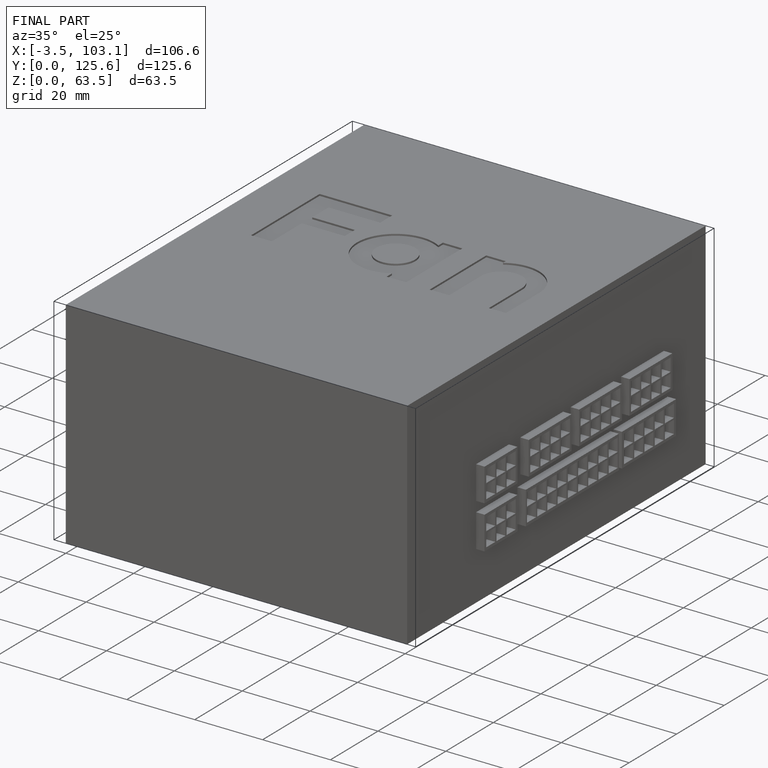
[diagram: finished part — iso view with bounding-box wireframe]
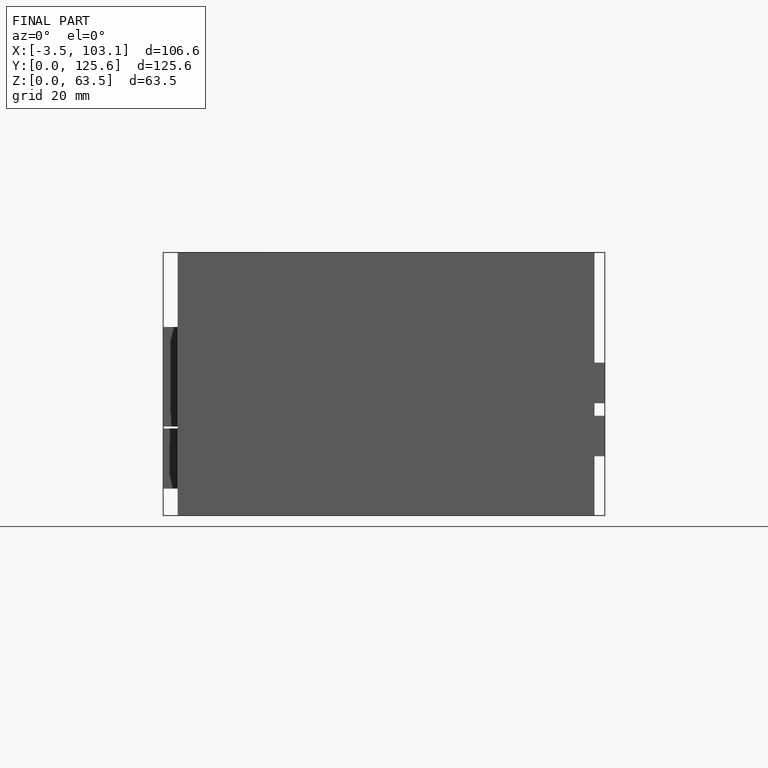
[diagram: finished part — front view with bounding-box wireframe]
